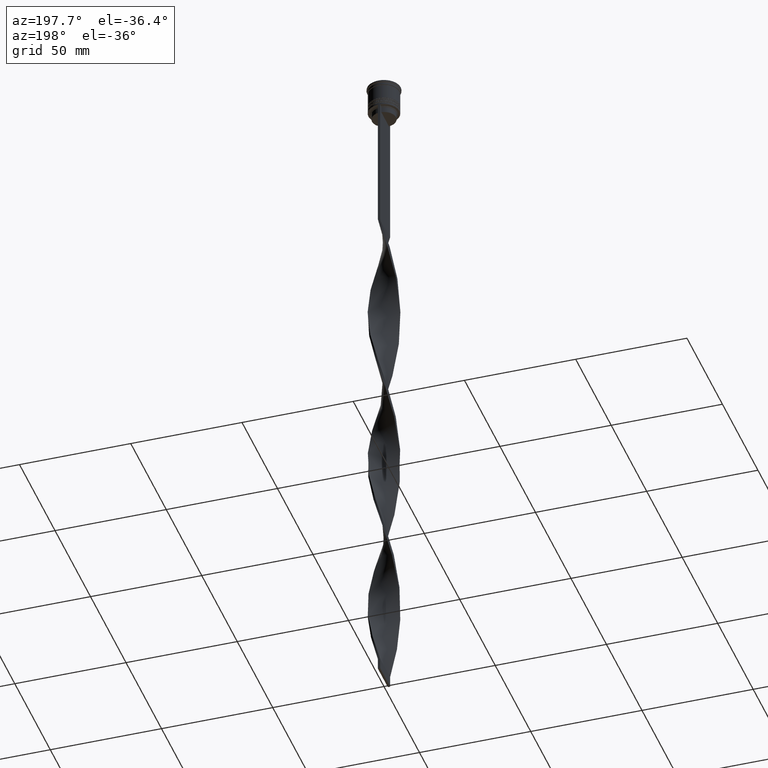
[diagram: clean part render]
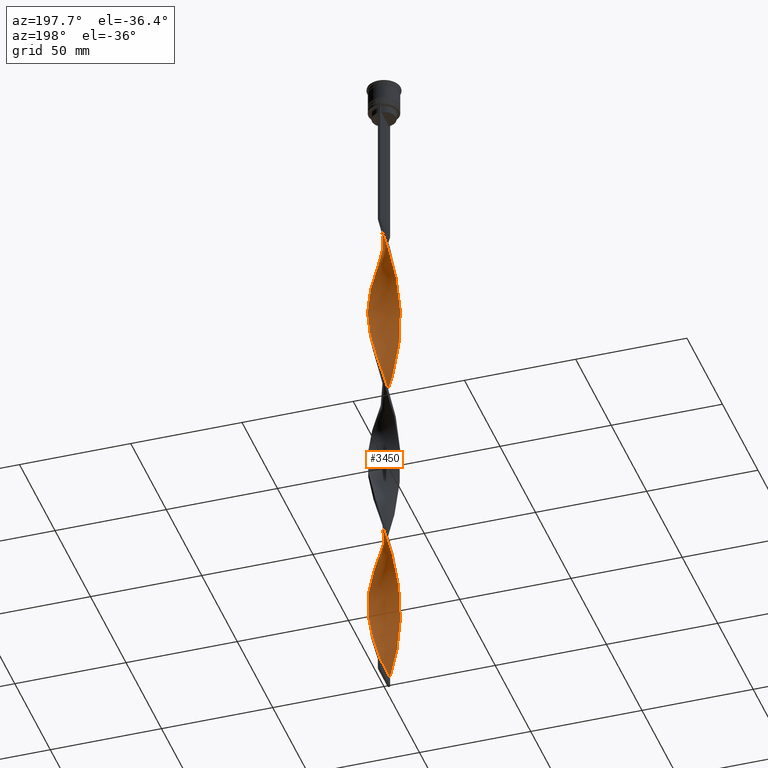
[diagram: same view with one face highlighted and labeled with its STEP entity id]
A machine part, auxiliary view. The second image highlights one B-rep face of the part: STEP entity #3450.
In plain terms, the highlighted face is a freeform B-spline surface patch.
Its self-contained STEP definition (entity closure, byte-faithful):
#6 = CARTESIAN_POINT ( 'NONE',  ( 6.248993995829454029, 3.241161289406940593, -204.1500000000000341 ) ) ;
#10 = CARTESIAN_POINT ( 'NONE',  ( -0.5000000000000008882, -7.000000000000002665, -307.5000000000000000 ) ) ;
#16 = CARTESIAN_POINT ( 'NONE',  ( -6.010050419448804249, 3.623436760271012691, -256.8000000000000114 ) ) ;
#23 = CARTESIAN_POINT ( 'NONE',  ( -0.4999999999999991673, 6.999999999999997335, -307.5000000000000000 ) ) ;
#24 = CARTESIAN_POINT ( 'NONE',  ( -3.709988268859839788, 5.957011586770871503, -89.10000000000000853 ) ) ;
#25 = CARTESIAN_POINT ( 'NONE',  ( -4.096437986383648422, -5.724879761844409387, -293.8500000000000227 ) ) ;
#36 = CARTESIAN_POINT ( 'NONE',  ( -2.638647218772210312, -6.502887116878603990, -299.6999999999999886 ) ) ;
#49 = CARTESIAN_POINT ( 'NONE',  ( 4.596194077712557835, 5.303300858899104853, -288.0000000000000568 ) ) ;
#60 = CARTESIAN_POINT ( 'NONE',  ( 1.588885425579184663, -6.835601151645846585, -77.40000000000000568 ) ) ;
#71 = CARTESIAN_POINT ( 'NONE',  ( -6.464040919188350998, -2.732430236082644459, -280.1999999999999886 ) ) ;
#79 = CARTESIAN_POINT ( 'NONE',  ( -6.710553156704007094, -2.126858903386035671, -196.3500000000000227 ) ) ;
#80 = CARTESIAN_POINT ( 'NONE',  ( -4.178815248312737651, -5.665029177712284536, -211.9499999999999886 ) ) ;
#85 = ORIENTED_EDGE ( 'NONE', *, *, #2129, .T. ) ;
#87 = CARTESIAN_POINT ( 'NONE',  ( -6.710553156704009758, 2.126858903386041888, -262.6499999999999773 ) ) ;
#101 = CARTESIAN_POINT ( 'NONE',  ( 2.223699182758344772, 6.679087842547246190, -141.7499999999999716 ) ) ;
#110 = CARTESIAN_POINT ( 'NONE',  ( -3.623436760271013135, -6.010050419448804249, -295.8000000000000114 ) ) ;
#114 = EDGE_CURVE ( 'NONE', #1023, #331, #3911, .T. ) ;
#123 = CARTESIAN_POINT ( 'NONE',  ( -1.687590702477056226, -6.811904111253546112, -221.7000000000000171 ) ) ;
#135 = CARTESIAN_POINT ( 'NONE',  ( -6.960649146587694069, 1.050911947772329658, -110.5500000000000114 ) ) ;
#140 = CARTESIAN_POINT ( 'NONE',  ( 0.5000000000000000000, -6.999999999999997335, -229.5000000000000000 ) ) ;
#155 = CARTESIAN_POINT ( 'NONE',  ( 3.241161289406941926, 6.248993995829446924, -137.8499999999999943 ) ) ;
#161 = CARTESIAN_POINT ( 'NONE',  ( -7.000000000000002665, 0.5000000000000004441, -112.5000000000000142 ) ) ;
#172 = CARTESIAN_POINT ( 'NONE',  ( -0.6011970849840476694, 6.992035616686082200, -77.40000000000000568 ) ) ;
#182 = CARTESIAN_POINT ( 'NONE',  ( -5.957011586770871503, -3.709988268859838900, -128.0999999999999943 ) ) ;
#200 = CARTESIAN_POINT ( 'NONE',  ( 6.811904111253552330, 1.687590702477054450, -198.3000000000000114 ) ) ;
#209 = CARTESIAN_POINT ( 'NONE',  ( -0.05091194777233376545, -7.039350853412307707, -227.5500000000000114 ) ) ;
#211 = CARTESIAN_POINT ( 'NONE',  ( -6.710553156704009758, 2.126858903386041888, -106.6500000000000199 ) ) ;
#216 = CARTESIAN_POINT ( 'NONE',  ( 6.944720379959848700, -1.151482222195765681, -262.6499999999999773 ) ) ;
#218 =( BOUNDED_SURFACE ( )  B_SPLINE_SURFACE ( 1, 2, ( 
 ( #1631, #3595, #2903, #1378, #2632, #3918, #1068, #2038, #24, #2054, #2347, #762, #471, #2021, #2856, #1724, #3289, #454, #2973, #2538, #161, #1416, #2673, #3959, #1107, #2365, #2441, #2760, #182, #1124, #1807, #1765, #1206, #3348, #1167, #2097, #2405, #220, #1475, #2693, #3712, #3010, #902, #4039, #2075, #1183, #4021, #2160, #877, #515, #3675, #3050, #1745, #2739, #2136, #3976, #3405, #1458, #3031, #575, #1831, #1437, #2382, #3073, #200, #2462, #3650, #819, #3091, #3739, #2715, #3366, #2425, #3996, #1142, #3696, #3382, #843, #533, #263, #1516, #1785, #860, #2116, #490, #550, #2778, #243, #1497, #4057, #1864, #659, #1577, #613, #16, #1228, #1912, #3131, #306, #1269, #1556, #3158, #2847, #1318, #3196, #2487, #3466, #678, #1534, #3110, #2867, #281, #2571, #4109, #3178, #2822, #36, #1931, #1294, #370, #1246 ),
 ( #2894, #1621, #60, #2549, #348, #1598, #1006, #965, #3443, #3829, #3850, #2226, #2176, #986, #2798, #3424, #2506, #2528, #2247, #593, #1849, #4084, #3515, #3778, #3761, #920, #938, #2196, #637, #1889, #328, #3805, #3493, #155, #3301, #101, #756, #427, #2288, #2667, #3258, #3574, #2913, #1336, #1972, #2322, #3590, #2628, #1392, #2014, #3894, #1679, #720, #2984, #3284, #3239, #2952, #1028, #449, #1993, #3557, #392, #409, #79, #1658, #779, #1640, #1409, #1702, #466, #1717, #2340, #2645, #3955, #2967, #2266, #123, #2929, #1047, #3222, #140, #2587, #3930, #3534, #1374, #3912, #1080, #3872, #698, #3615, #2035, #1064, #1354, #2609, #1953, #2305, #738, #216, #3068, #1103, #3646, #1137, #2756, #3318, #794, #2689, #2774, #1471, #857, #2733, #3692, #3972, #2113, #3992, #569, #4015, #1180, #1163, #3341, #1826, #2421 ) ),
 .UNSPECIFIED., .F., .F., .F. ) 
 B_SPLINE_SURFACE_WITH_KNOTS ( ( 2, 2 ),
 ( 3, 2, 2, 2, 2, 2, 2, 2, 2, 2, 2, 2, 2, 2, 2, 2, 2, 2, 2, 2, 2, 2, 2, 2, 2, 2, 2, 2, 2, 2, 2, 2, 2, 2, 2, 2, 2, 2, 2, 2, 2, 2, 2, 2, 2, 2, 2, 2, 2, 2, 2, 2, 2, 2, 2, 2, 2, 2, 2, 2, 3 ),
 ( 0.000000000000000000, 1.000000000000000000 ),
 ( 0.000000000000000000, 0.01250000000000000069, 0.02500000000000000139, 0.03749999999999999861, 0.05000000000000000278, 0.06250000000000000000, 0.07499999999999999722, 0.08749999999999999445, 0.1000000000000000056, 0.1125000000000000028, 0.1250000000000000000, 0.1375000000000000111, 0.1499999999999999944, 0.1625000000000000056, 0.1749999999999999889, 0.1875000000000000000, 0.2000000000000000111, 0.2124999999999999944, 0.2250000000000000056, 0.2374999999999999889, 0.2500000000000000000, 0.2625000000000000111, 0.2750000000000000222, 0.2874999999999999778, 0.2999999999999999889, 0.3125000000000000000, 0.3250000000000000111, 0.3375000000000000222, 0.3499999999999999778, 0.3624999999999999889, 0.3750000000000000000, 0.3875000000000000111, 0.4000000000000000222, 0.4124999999999999778, 0.4249999999999999889, 0.4375000000000000000, 0.4500000000000000111, 0.4625000000000000222, 0.4749999999999999778, 0.4874999999999999889, 0.5000000000000000000, 0.5124999999999999556, 0.5250000000000000222, 0.5374999999999999778, 0.5500000000000000444, 0.5625000000000000000, 0.5749999999999999556, 0.5875000000000000222, 0.5999999999999999778, 0.6125000000000000444, 0.6250000000000000000, 0.6374999999999999556, 0.6500000000000000222, 0.6624999999999999778, 0.6750000000000000444, 0.6875000000000000000, 0.6999999999999999556, 0.7125000000000000222, 0.7249999999999999778, 0.7375000000000000444, 0.7500000000000000000 ),
 .UNSPECIFIED. ) 
 GEOMETRIC_REPRESENTATION_ITEM ( )  RATIONAL_B_SPLINE_SURFACE ( (
 ( 1.000000000000000000, 0.9969173337331279638, 1.000000000000000000, 0.9969173337331279638, 1.000000000000000000, 0.9969173337331279638, 1.000000000000000000, 0.9969173337331279638, 1.000000000000000000, 0.9969173337331279638, 1.000000000000000000, 0.9969173337331279638, 1.000000000000000000, 0.9969173337331279638, 1.000000000000000000, 0.9969173337331279638, 1.000000000000000000, 0.9969173337331279638, 1.000000000000000000, 0.9969173337331279638, 1.000000000000000000, 0.9969173337331279638, 1.000000000000000000, 0.9969173337331279638, 1.000000000000000000, 0.9969173337331279638, 1.000000000000000000, 0.9969173337331279638, 1.000000000000000000, 0.9969173337331279638, 1.000000000000000000, 0.9969173337331279638, 1.000000000000000000, 0.9969173337331279638, 1.000000000000000000, 0.9969173337331279638, 1.000000000000000000, 0.9969173337331279638, 1.000000000000000000, 0.9969173337331279638, 1.000000000000000000, 0.9969173337331279638, 1.000000000000000000, 0.9969173337331279638, 1.000000000000000000, 0.9969173337331279638, 1.000000000000000000, 0.9969173337331279638, 1.000000000000000000, 0.9969173337331279638, 1.000000000000000000, 0.9969173337331279638, 1.000000000000000000, 0.9969173337331279638, 1.000000000000000000, 0.9969173337331279638, 1.000000000000000000, 0.9969173337331279638, 1.000000000000000000, 0.9969173337331279638, 1.000000000000000000, 0.9969173337331279638, 1.000000000000000000, 0.9969173337331279638, 1.000000000000000000, 0.9969173337331279638, 1.000000000000000000, 0.9969173337331279638, 1.000000000000000000, 0.9969173337331279638, 1.000000000000000000, 0.9969173337331279638, 1.000000000000000000, 0.9969173337331279638, 1.000000000000000000, 0.9969173337331279638, 1.000000000000000000, 0.9969173337331279638, 1.000000000000000000, 0.9969173337331279638, 1.000000000000000000, 0.9969173337331279638, 1.000000000000000000, 0.9969173337331279638, 1.000000000000000000, 0.9969173337331279638, 1.000000000000000000, 0.9969173337331279638, 1.000000000000000000, 0.9969173337331279638, 1.000000000000000000, 0.9969173337331279638, 1.000000000000000000, 0.9969173337331279638, 1.000000000000000000, 0.9969173337331279638, 1.000000000000000000, 0.9969173337331279638, 1.000000000000000000, 0.9969173337331279638, 1.000000000000000000, 0.9969173337331279638, 1.000000000000000000, 0.9969173337331279638, 1.000000000000000000, 0.9969173337331279638, 1.000000000000000000, 0.9969173337331279638, 1.000000000000000000, 0.9969173337331279638, 1.000000000000000000, 0.9969173337331279638, 1.000000000000000000, 0.9969173337331279638, 1.000000000000000000, 0.9969173337331279638, 1.000000000000000000, 0.9969173337331279638, 1.000000000000000000, 0.9969173337331279638, 1.000000000000000000),
 ( 1.000000000000000000, 0.9969173337331279638, 1.000000000000000000, 0.9969173337331279638, 1.000000000000000000, 0.9969173337331279638, 1.000000000000000000, 0.9969173337331279638, 1.000000000000000000, 0.9969173337331279638, 1.000000000000000000, 0.9969173337331279638, 1.000000000000000000, 0.9969173337331279638, 1.000000000000000000, 0.9969173337331279638, 1.000000000000000000, 0.9969173337331279638, 1.000000000000000000, 0.9969173337331279638, 1.000000000000000000, 0.9969173337331279638, 1.000000000000000000, 0.9969173337331279638, 1.000000000000000000, 0.9969173337331279638, 1.000000000000000000, 0.9969173337331279638, 1.000000000000000000, 0.9969173337331279638, 1.000000000000000000, 0.9969173337331279638, 1.000000000000000000, 0.9969173337331279638, 1.000000000000000000, 0.9969173337331279638, 1.000000000000000000, 0.9969173337331279638, 1.000000000000000000, 0.9969173337331279638, 1.000000000000000000, 0.9969173337331279638, 1.000000000000000000, 0.9969173337331279638, 1.000000000000000000, 0.9969173337331279638, 1.000000000000000000, 0.9969173337331279638, 1.000000000000000000, 0.9969173337331279638, 1.000000000000000000, 0.9969173337331279638, 1.000000000000000000, 0.9969173337331279638, 1.000000000000000000, 0.9969173337331279638, 1.000000000000000000, 0.9969173337331279638, 1.000000000000000000, 0.9969173337331279638, 1.000000000000000000, 0.9969173337331279638, 1.000000000000000000, 0.9969173337331279638, 1.000000000000000000, 0.9969173337331279638, 1.000000000000000000, 0.9969173337331279638, 1.000000000000000000, 0.9969173337331279638, 1.000000000000000000, 0.9969173337331279638, 1.000000000000000000, 0.9969173337331279638, 1.000000000000000000, 0.9969173337331279638, 1.000000000000000000, 0.9969173337331279638, 1.000000000000000000, 0.9969173337331279638, 1.000000000000000000, 0.9969173337331279638, 1.000000000000000000, 0.9969173337331279638, 1.000000000000000000, 0.9969173337331279638, 1.000000000000000000, 0.9969173337331279638, 1.000000000000000000, 0.9969173337331279638, 1.000000000000000000, 0.9969173337331279638, 1.000000000000000000, 0.9969173337331279638, 1.000000000000000000, 0.9969173337331279638, 1.000000000000000000, 0.9969173337331279638, 1.000000000000000000, 0.9969173337331279638, 1.000000000000000000, 0.9969173337331279638, 1.000000000000000000, 0.9969173337331279638, 1.000000000000000000, 0.9969173337331279638, 1.000000000000000000, 0.9969173337331279638, 1.000000000000000000, 0.9969173337331279638, 1.000000000000000000, 0.9969173337331279638, 1.000000000000000000, 0.9969173337331279638, 1.000000000000000000, 0.9969173337331279638, 1.000000000000000000, 0.9969173337331279638, 1.000000000000000000, 0.9969173337331279638, 1.000000000000000000) ) ) 
 REPRESENTATION_ITEM ( '' )  SURFACE ( )  );
#220 = CARTESIAN_POINT ( 'NONE',  ( -2.126858903386042332, -6.710553156704010647, -145.6500000000000341 ) ) ;
#231 = CARTESIAN_POINT ( 'NONE',  ( 7.000000000000002665, -0.5000000000000013323, -190.5000000000000000 ) ) ;
#243 = CARTESIAN_POINT ( 'NONE',  ( -3.241161289406943702, 6.248993995829452253, -243.1500000000000057 ) ) ;
#251 = CARTESIAN_POINT ( 'NONE',  ( 5.724879761844405834, 4.096437986383644869, -126.1500000000000057 ) ) ;
#254 = CARTESIAN_POINT ( 'NONE',  ( 4.519005263234789460, 5.369226334478396367, -213.9000000000000057 ) ) ;
#263 = CARTESIAN_POINT ( 'NONE',  ( 1.050911947772333876, 6.960649146587694958, -227.5499999999999829 ) ) ;
#273 = CARTESIAN_POINT ( 'NONE',  ( 5.369226334478396367, -4.519005263234788572, -174.9000000000000057 ) ) ;
#281 = CARTESIAN_POINT ( 'NONE',  ( -4.941572540085928722, -5.013572907112387789, -289.9500000000001023 ) ) ;
#284 = CARTESIAN_POINT ( 'NONE',  ( -6.960649146587689629, -1.050911947772330990, -192.4500000000000455 ) ) ;
#294 = CARTESIAN_POINT ( 'NONE',  ( -3.623436760271013135, -6.010050419448804249, -139.8000000000000114 ) ) ;
#296 = CARTESIAN_POINT ( 'NONE',  ( 5.957011586770867062, -3.709988268859836236, -96.90000000000001990 ) ) ;
#306 = CARTESIAN_POINT ( 'NONE',  ( -6.835601151645851026, 1.588885425579185995, -264.6000000000000227 ) ) ;
#319 = CARTESIAN_POINT ( 'NONE',  ( 1.151482222195765237, -6.944720379959854029, -157.3499999999999943 ) ) ;
#328 = CARTESIAN_POINT ( 'NONE',  ( 4.596194077712557835, 5.303300858899104853, -132.0000000000000000 ) ) ;
#331 = VERTEX_POINT ( 'NONE', #1075 ) ;
#338 = CARTESIAN_POINT ( 'NONE',  ( -5.369226334478397256, 4.519005263234787684, -252.9000000000000057 ) ) ;
#348 = CARTESIAN_POINT ( 'NONE',  ( 2.638647218772207648, -6.502887116878598661, -81.30000000000001137 ) ) ;
#356 = CARTESIAN_POINT ( 'NONE',  ( 6.010050419448799808, 3.623436760271010026, -280.1999999999999886 ) ) ;
#357 = CARTESIAN_POINT ( 'NONE',  ( 5.724879761844405834, 4.096437986383644869, -282.1500000000000909 ) ) ;
#359 = CARTESIAN_POINT ( 'NONE',  ( -6.992035616686082200, -0.6011970849840472253, -272.3999999999999773 ) ) ;
#370 = CARTESIAN_POINT ( 'NONE',  ( -1.050911947772330324, -6.960649146587694958, -305.5500000000000114 ) ) ;
#383 = CARTESIAN_POINT ( 'NONE',  ( -3.241161289406943702, 6.248993995829452253, -243.1500000000000057 ) ) ;
#392 = CARTESIAN_POINT ( 'NONE',  ( -6.960649146587689629, -1.050911947772330990, -192.4500000000000171 ) ) ;
#396 = EDGE_CURVE ( 'NONE', #331, #1277, #2773, .T. ) ;
#402 = CARTESIAN_POINT ( 'NONE',  ( -7.039350853412313036, -0.05091194777232888741, -270.4500000000000455 ) ) ;
#409 = CARTESIAN_POINT ( 'NONE',  ( -6.835601151645846585, -1.588885425579183330, -194.4000000000000057 ) ) ;
#417 = CARTESIAN_POINT ( 'NONE',  ( -2.638647218772210312, -6.502887116878603990, -299.6999999999999886 ) ) ;
#427 = CARTESIAN_POINT ( 'NONE',  ( 1.151482222195765681, 6.944720379959848700, -145.6500000000000341 ) ) ;
#449 = CARTESIAN_POINT ( 'NONE',  ( -6.992035616686076871, 0.6011970849840481135, -186.5999999999999943 ) ) ;
#454 = CARTESIAN_POINT ( 'NONE',  ( -6.710553156704010647, 2.126858903386041888, -106.6500000000000199 ) ) ;
#466 = CARTESIAN_POINT ( 'NONE',  ( -5.013572907112382460, -4.941572540085926057, -208.0500000000000398 ) ) ;
#471 = CARTESIAN_POINT ( 'NONE',  ( -5.369226334478397256, 4.519005263234787684, -96.90000000000001990 ) ) ;
#490 = CARTESIAN_POINT ( 'NONE',  ( -1.687590702477055782, 6.811904111253551442, -237.3000000000000114 ) ) ;
#515 = CARTESIAN_POINT ( 'NONE',  ( 4.178815248312736763, -5.665029177712291641, -169.0499999999999829 ) ) ;
#526 = CARTESIAN_POINT ( 'NONE',  ( -6.010050419448804249, 3.623436760271012691, -100.7999999999999972 ) ) ;
#533 = CARTESIAN_POINT ( 'NONE',  ( 1.588885425579186883, 6.835601151645850138, -225.5999999999999943 ) ) ;
#543 = CARTESIAN_POINT ( 'NONE',  ( 2.732430236082644015, -6.464040919188350998, -163.2000000000000171 ) ) ;
#550 = CARTESIAN_POINT ( 'NONE',  ( -2.223699182758346105, 6.679087842547251519, -239.2500000000000000 ) ) ;
#561 = CARTESIAN_POINT ( 'NONE',  ( 4.178815248312734987, 5.665029177712287201, -133.9500000000000455 ) ) ;
#563 = CARTESIAN_POINT ( 'NONE',  ( -2.638647218772210312, -6.502887116878603990, -143.6999999999999886 ) ) ;
#569 = CARTESIAN_POINT ( 'NONE',  ( 2.732430236082643127, 6.464040919188344780, -295.8000000000000114 ) ) ;
#575 = CARTESIAN_POINT ( 'NONE',  ( 6.960649146587694958, -1.050911947772333654, -188.5500000000000398 ) ) ;
#583 = CARTESIAN_POINT ( 'NONE',  ( 1.588885425579186883, 6.835601151645850138, -225.5999999999999943 ) ) ;
#586 = CARTESIAN_POINT ( 'NONE',  ( 6.502887116878599549, 2.638647218772207204, -276.3000000000000114 ) ) ;
#589 = VERTEX_POINT ( 'NONE', #2637 ) ;
#593 = CARTESIAN_POINT ( 'NONE',  ( 7.039350853412307707, -0.05091194777232931762, -110.5500000000000114 ) ) ;
#603 = CARTESIAN_POINT ( 'NONE',  ( 6.679087842547249743, 2.223699182758347881, -200.2500000000000000 ) ) ;
#605 = CARTESIAN_POINT ( 'NONE',  ( 6.679087842547245302, -2.223699182758344772, -102.7500000000000284 ) ) ;
#613 = CARTESIAN_POINT ( 'NONE',  ( -5.724879761844408499, 4.096437986383648422, -254.8500000000000227 ) ) ;
#625 = CARTESIAN_POINT ( 'NONE',  ( 5.957011586770871503, 3.709988268859838012, -206.0999999999999943 ) ) ;
#627 = CARTESIAN_POINT ( 'NONE',  ( 4.519005263234784131, -5.369226334478393703, -89.10000000000000853 ) ) ;
#637 = CARTESIAN_POINT ( 'NONE',  ( 5.369226334478393703, 4.519005263234783243, -128.0999999999999943 ) ) ;
#659 = CARTESIAN_POINT ( 'NONE',  ( -5.013572907112387789, 4.941572540085928722, -250.9499999999999602 ) ) ;
#666 = CARTESIAN_POINT ( 'NONE',  ( 5.369226334478393703, 4.519005263234783243, -284.1000000000000227 ) ) ;
#668 = CARTESIAN_POINT ( 'NONE',  ( -6.248993995829452253, -3.241161289406943702, -282.1500000000000909 ) ) ;
#671 = CARTESIAN_POINT ( 'NONE',  ( 3.623436760271010026, -6.010050419448799808, -85.20000000000001705 ) ) ;
#678 = CARTESIAN_POINT ( 'NONE',  ( -6.248993995829452253, -3.241161289406943702, -282.1500000000000909 ) ) ;
#698 = CARTESIAN_POINT ( 'NONE',  ( 4.519005263234784131, -5.369226334478393703, -245.1000000000000227 ) ) ;
#720 = CARTESIAN_POINT ( 'NONE',  ( -5.957011586770866174, 3.709988268859837568, -174.9000000000000057 ) ) ;
#738 = CARTESIAN_POINT ( 'NONE',  ( 6.811904111253546112, -1.687590702477054450, -260.6999999999999886 ) ) ;
#755 = DIRECTION ( 'NONE',  ( 0.000000000000000000, 1.000000000000000000, 0.000000000000000000 ) ) ;
#756 = CARTESIAN_POINT ( 'NONE',  ( 1.687590702477054894, 6.811904111253546112, -143.6999999999999886 ) ) ;
#762 = CARTESIAN_POINT ( 'NONE',  ( -5.013572907112387789, 4.941572540085928722, -94.95000000000001705 ) ) ;
#770 = CARTESIAN_POINT ( 'NONE',  ( 6.944720379959847811, -1.151482222195765681, -106.6500000000000199 ) ) ;
#779 = CARTESIAN_POINT ( 'NONE',  ( -6.295221077053191117, -3.150435534158376960, -200.2500000000000000 ) ) ;
#794 = CARTESIAN_POINT ( 'NONE',  ( 6.502887116878599549, 2.638647218772207204, -276.3000000000000114 ) ) ;
#795 = CARTESIAN_POINT ( 'NONE',  ( 5.665029177712287201, -4.178815248312734987, -250.9500000000000171 ) ) ;
#807 = CARTESIAN_POINT ( 'NONE',  ( -1.151482222195766125, 6.944720379959853140, -79.35000000000002274 ) ) ;
#812 = VECTOR ( 'NONE', #755, 1000.000000000000000 ) ;
#819 = CARTESIAN_POINT ( 'NONE',  ( 6.248993995829454029, 3.241161289406941037, -204.1500000000000341 ) ) ;
#832 = CARTESIAN_POINT ( 'NONE',  ( -5.013572907112386901, 4.941572540085927834, -94.95000000000001705 ) ) ;
#843 = CARTESIAN_POINT ( 'NONE',  ( 2.126858903386039668, 6.710553156704011535, -223.6500000000000341 ) ) ;
#857 = CARTESIAN_POINT ( 'NONE',  ( 5.369226334478393703, 4.519005263234783243, -284.1000000000000227 ) ) ;
#860 = CARTESIAN_POINT ( 'NONE',  ( -0.6011970849840476694, 6.992035616686082200, -233.4000000000000057 ) ) ;
#868 = CARTESIAN_POINT ( 'NONE',  ( 2.732430236082643127, 6.464040919188344780, -139.8000000000000114 ) ) ;
#870 = CARTESIAN_POINT ( 'NONE',  ( 5.303300858899109294, 4.596194077712558723, -210.0000000000000000 ) ) ;
#877 = CARTESIAN_POINT ( 'NONE',  ( 3.709988268859838900, -5.957011586770871503, -167.0999999999999943 ) ) ;
#887 = CARTESIAN_POINT ( 'NONE',  ( -6.811904111253552330, -1.687590702477055338, -120.2999999999999972 ) ) ;
#902 = CARTESIAN_POINT ( 'NONE',  ( 0.6011970849840465592, -6.992035616686082200, -155.4000000000000057 ) ) ;
#910 = CARTESIAN_POINT ( 'NONE',  ( -0.05091194777232942864, 7.039350853412313036, -231.4500000000000171 ) ) ;
#920 = CARTESIAN_POINT ( 'NONE',  ( 6.295221077053192005, 3.150435534158375184, -122.2500000000000142 ) ) ;
#923 = CARTESIAN_POINT ( 'NONE',  ( 6.944720379959847811, -1.151482222195765681, -262.6499999999999773 ) ) ;
#929 = CARTESIAN_POINT ( 'NONE',  ( -6.248993995829452253, -3.241161289406943702, -126.1500000000000057 ) ) ;
#938 = CARTESIAN_POINT ( 'NONE',  ( 6.010050419448799808, 3.623436760271010026, -124.2000000000000028 ) ) ;
#951 = CARTESIAN_POINT ( 'NONE',  ( -5.303300858899108405, -4.596194077712559611, -132.0000000000000000 ) ) ;
#965 = CARTESIAN_POINT ( 'NONE',  ( 4.096437986383643981, -5.724879761844404946, -87.15000000000001990 ) ) ;
#986 = CARTESIAN_POINT ( 'NONE',  ( 6.248993995829446924, -3.241161289406941926, -98.85000000000002274 ) ) ;
#1006 = CARTESIAN_POINT ( 'NONE',  ( 3.623436760271010026, -6.010050419448799808, -85.20000000000001705 ) ) ;
#1014 = CARTESIAN_POINT ( 'NONE',  ( 2.732430236082643127, 6.464040919188344780, -295.8000000000000114 ) ) ;
#1016 = CARTESIAN_POINT ( 'NONE',  ( -4.596194077712561388, 5.303300858899108405, -249.0000000000000000 ) ) ;
#1023 = VERTEX_POINT ( 'NONE', #2669 ) ;
#1028 = CARTESIAN_POINT ( 'NONE',  ( -6.944720379959849588, 1.151482222195763239, -184.6500000000000057 ) ) ;
#1047 = CARTESIAN_POINT ( 'NONE',  ( -0.6011970849840483355, -6.992035616686076871, -225.5999999999999943 ) ) ;
#1057 = CARTESIAN_POINT ( 'NONE',  ( 6.835601151645846585, 1.588885425579184218, -116.4000000000000057 ) ) ;
#1058 = CARTESIAN_POINT ( 'NONE',  ( -6.464040919188344780, 2.732430236082643571, -178.8000000000000114 ) ) ;
#1063 = CARTESIAN_POINT ( 'NONE',  ( 0.5000000000000000000, -6.999999999999997335, -73.50000000000001421 ) ) ;
#1064 = CARTESIAN_POINT ( 'NONE',  ( 5.665029177712287201, -4.178815248312734987, -250.9499999999999602 ) ) ;
#1068 = CARTESIAN_POINT ( 'NONE',  ( -2.732430236082644459, 6.464040919188350998, -85.20000000000001705 ) ) ;
#1075 = CARTESIAN_POINT ( 'NONE',  ( 0.5000000000000000000, 7.000000000000002665, -73.50000000000001421 ) ) ;
#1080 = CARTESIAN_POINT ( 'NONE',  ( 3.623436760271010026, -6.010050419448799808, -241.1999999999999886 ) ) ;
#1086 = FACE_OUTER_BOUND ( 'NONE', #2794, .T. ) ;
#1100 = CARTESIAN_POINT ( 'NONE',  ( -0.4999999999999991673, 6.999999999999997335, -151.5000000000000284 ) ) ;
#1103 = CARTESIAN_POINT ( 'NONE',  ( 7.039350853412307707, -0.05091194777232931762, -266.5500000000000114 ) ) ;
#1107 = CARTESIAN_POINT ( 'NONE',  ( -6.811904111253552330, -1.687590702477055338, -120.2999999999999972 ) ) ;
#1121 = CARTESIAN_POINT ( 'NONE',  ( 5.957011586770867062, -3.709988268859836236, -252.9000000000000057 ) ) ;
#1124 = CARTESIAN_POINT ( 'NONE',  ( -5.665029177712290753, -4.178815248312736763, -130.0499999999999829 ) ) ;
#1137 = CARTESIAN_POINT ( 'NONE',  ( 6.960649146587689629, 1.050911947772328325, -270.4500000000000455 ) ) ;
#1142 = CARTESIAN_POINT ( 'NONE',  ( 3.623436760271014023, 6.010050419448804249, -217.7999999999999829 ) ) ;
#1153 = CARTESIAN_POINT ( 'NONE',  ( 0.5000000000000000000, -6.999999999999997335, -229.5000000000000000 ) ) ;
#1161 = CARTESIAN_POINT ( 'NONE',  ( 4.596194077712557835, 5.303300858899104853, -132.0000000000000000 ) ) ;
#1163 = CARTESIAN_POINT ( 'NONE',  ( 1.151482222195765681, 6.944720379959848700, -301.6500000000000341 ) ) ;
#1167 = CARTESIAN_POINT ( 'NONE',  ( -3.623436760271013135, -6.010050419448804249, -139.8000000000000114 ) ) ;
#1177 = CARTESIAN_POINT ( 'NONE',  ( -0.5000000000000008882, -7.000000000000002665, -151.5000000000000284 ) ) ;
#1180 = CARTESIAN_POINT ( 'NONE',  ( 1.687590702477054894, 6.811904111253546112, -299.6999999999999886 ) ) ;
#1183 = CARTESIAN_POINT ( 'NONE',  ( 2.223699182758345216, -6.679087842547252407, -161.2500000000000568 ) ) ;
#1193 = CARTESIAN_POINT ( 'NONE',  ( 0.05091194777232986579, 7.039350853412307707, -149.5500000000000398 ) ) ;
#1196 = CARTESIAN_POINT ( 'NONE',  ( 2.638647218772211200, 6.502887116878603990, -221.7000000000000171 ) ) ;
#1206 = CARTESIAN_POINT ( 'NONE',  ( -4.519005263234788572, -5.369226334478396367, -135.9000000000000341 ) ) ;
#1211 = CARTESIAN_POINT ( 'NONE',  ( -2.732430236082644015, -6.464040919188344780, -217.7999999999999829 ) ) ;
#1216 = CARTESIAN_POINT ( 'NONE',  ( 4.096437986383647534, 5.724879761844410275, -215.8500000000000512 ) ) ;
#1228 = CARTESIAN_POINT ( 'NONE',  ( -6.295221077053197334, 3.150435534158377848, -258.7500000000001137 ) ) ;
#1237 = CARTESIAN_POINT ( 'NONE',  ( 3.241161289406943258, -6.248993995829452253, -165.1500000000000341 ) ) ;
#1246 = CARTESIAN_POINT ( 'NONE',  ( -0.5000000000000008882, -7.000000000000002665, -307.5000000000000000 ) ) ;
#1250 = CARTESIAN_POINT ( 'NONE',  ( -6.502887116878599549, -2.638647218772206759, -198.3000000000000114 ) ) ;
#1255 = CARTESIAN_POINT ( 'NONE',  ( 1.687590702477054894, 6.811904111253546112, -299.6999999999999886 ) ) ;
#1258 = CARTESIAN_POINT ( 'NONE',  ( -6.679087842547250631, -2.223699182758345660, -122.2500000000000142 ) ) ;
#1264 = ORIENTED_EDGE ( 'NONE', *, *, #3648, .F. ) ;
#1266 = CARTESIAN_POINT ( 'NONE',  ( -4.519005263234783243, 5.369226334478393703, -167.0999999999999943 ) ) ;
#1269 = CARTESIAN_POINT ( 'NONE',  ( -6.960649146587694958, 1.050911947772329658, -266.5500000000000114 ) ) ;
#1277 = VERTEX_POINT ( 'NONE', #3978 ) ;
#1279 = CARTESIAN_POINT ( 'NONE',  ( 3.709988268859837568, 5.957011586770866174, -291.8999999999999773 ) ) ;
#1282 = CARTESIAN_POINT ( 'NONE',  ( -5.303300858899108405, -4.596194077712559611, -288.0000000000000568 ) ) ;
#1294 = CARTESIAN_POINT ( 'NONE',  ( -1.588885425579185995, -6.835601151645850138, -303.5999999999999659 ) ) ;
#1307 = CARTESIAN_POINT ( 'NONE',  ( 2.223699182758344772, 6.679087842547245302, -297.7499999999999432 ) ) ;
#1310 = CARTESIAN_POINT ( 'NONE',  ( -2.223699182758346105, 6.679087842547250631, -239.2500000000000284 ) ) ;
#1315 = CARTESIAN_POINT ( 'NONE',  ( -6.295221077053192005, -3.150435534158377404, -200.2500000000000000 ) ) ;
#1318 = CARTESIAN_POINT ( 'NONE',  ( -6.944720379959854917, -1.151482222195765681, -274.3499999999999659 ) ) ;
#1329 = CARTESIAN_POINT ( 'NONE',  ( 4.941572540085925169, -5.013572907112383348, -91.05000000000001137 ) ) ;
#1336 = CARTESIAN_POINT ( 'NONE',  ( -2.126858903386039223, 6.710553156704006206, -157.3499999999999659 ) ) ;
#1354 = CARTESIAN_POINT ( 'NONE',  ( 5.957011586770867062, -3.709988268859836236, -252.9000000000000057 ) ) ;
#1363 = CARTESIAN_POINT ( 'NONE',  ( -0.5000000000000008882, -7.000000000000002665, -307.5000000000000000 ) ) ;
#1366 = CARTESIAN_POINT ( 'NONE',  ( 6.999999999999997335, 0.4999999999999995559, -112.5000000000000142 ) ) ;
#1374 = CARTESIAN_POINT ( 'NONE',  ( 2.638647218772207648, -6.502887116878598661, -237.3000000000000114 ) ) ;
#1378 = CARTESIAN_POINT ( 'NONE',  ( -1.151482222195766125, 6.944720379959854029, -79.35000000000002274 ) ) ;
#1380 = CARTESIAN_POINT ( 'NONE',  ( 6.811904111253546112, -1.687590702477054450, -260.6999999999999886 ) ) ;
#1384 = CARTESIAN_POINT ( 'NONE',  ( 6.992035616686076871, -0.6011970849840472253, -264.6000000000000227 ) ) ;
#1386 = CARTESIAN_POINT ( 'NONE',  ( -7.000000000000002665, 0.5000000000000004441, -112.5000000000000142 ) ) ;
#1388 = CARTESIAN_POINT ( 'NONE',  ( -5.303300858899104853, 4.596194077712558723, -170.9999999999999716 ) ) ;
#1389 = CARTESIAN_POINT ( 'NONE',  ( 3.241161289406941926, 6.248993995829446924, -137.8499999999999943 ) ) ;
#1392 = CARTESIAN_POINT ( 'NONE',  ( -4.519005263234783243, 5.369226334478393703, -167.0999999999999943 ) ) ;
#1407 = CARTESIAN_POINT ( 'NONE',  ( -5.957011586770866174, 3.709988268859837568, -174.9000000000000057 ) ) ;
#1409 = CARTESIAN_POINT ( 'NONE',  ( -5.724879761844406723, -4.096437986383641316, -204.1500000000000341 ) ) ;
#1416 = CARTESIAN_POINT ( 'NONE',  ( -7.039350853412313036, -0.05091194777232888741, -114.4500000000000313 ) ) ;
#1428 = CARTESIAN_POINT ( 'NONE',  ( -2.223699182758346105, 6.679087842547250631, -83.25000000000000000 ) ) ;
#1437 = CARTESIAN_POINT ( 'NONE',  ( 7.039350853412313036, 0.05091194777233126745, -192.4500000000000171 ) ) ;
#1444 = CARTESIAN_POINT ( 'NONE',  ( 6.010050419448799808, 3.623436760271010026, -124.2000000000000028 ) ) ;
#1458 = CARTESIAN_POINT ( 'NONE',  ( 6.710553156704011535, -2.126858903386039668, -184.6500000000000057 ) ) ;
#1468 = CARTESIAN_POINT ( 'NONE',  ( 3.623436760271010026, -6.010050419448799808, -241.1999999999999886 ) ) ;
#1471 = CARTESIAN_POINT ( 'NONE',  ( 5.724879761844404946, 4.096437986383643981, -282.1500000000000909 ) ) ;
#1475 = CARTESIAN_POINT ( 'NONE',  ( -1.588885425579185995, -6.835601151645850138, -147.6000000000000227 ) ) ;
#1487 = CARTESIAN_POINT ( 'NONE',  ( 0.6011970849840465592, -6.992035616686082200, -155.4000000000000057 ) ) ;
#1497 = CARTESIAN_POINT ( 'NONE',  ( -3.709988268859839788, 5.957011586770871503, -245.1000000000000227 ) ) ;
#1506 = CARTESIAN_POINT ( 'NONE',  ( 6.502887116878603990, -2.638647218772210756, -182.6999999999999886 ) ) ;
#1516 = CARTESIAN_POINT ( 'NONE',  ( 0.5000000000000000000, 7.000000000000002665, -229.5000000000000000 ) ) ;
#1518 = CARTESIAN_POINT ( 'NONE',  ( -6.944720379959848700, 1.151482222195763017, -184.6500000000000057 ) ) ;
#1525 = CARTESIAN_POINT ( 'NONE',  ( -1.588885425579185995, -6.835601151645850138, -147.6000000000000227 ) ) ;
#1534 = CARTESIAN_POINT ( 'NONE',  ( -5.957011586770871503, -3.709988268859838900, -284.1000000000000227 ) ) ;
#1546 = CARTESIAN_POINT ( 'NONE',  ( 0.05091194777232855434, -7.039350853412313036, -153.4500000000000171 ) ) ;
#1549 = CARTESIAN_POINT ( 'NONE',  ( 1.050911947772328991, -6.960649146587689629, -75.45000000000000284 ) ) ;
#1556 = CARTESIAN_POINT ( 'NONE',  ( -7.000000000000002665, 0.5000000000000004441, -268.4999999999999432 ) ) ;
#1566 = CARTESIAN_POINT ( 'NONE',  ( -4.941572540085927834, -5.013572907112386901, -133.9500000000000455 ) ) ;
#1577 = CARTESIAN_POINT ( 'NONE',  ( -5.369226334478397256, 4.519005263234787684, -252.9000000000000057 ) ) ;
#1588 = CARTESIAN_POINT ( 'NONE',  ( -3.709988268859839788, 5.957011586770871503, -245.1000000000000227 ) ) ;
#1598 = CARTESIAN_POINT ( 'NONE',  ( 3.150435534158375628, -6.295221077053192005, -83.25000000000000000 ) ) ;
#1610 = CARTESIAN_POINT ( 'NONE',  ( -4.941572540085927834, -5.013572907112386901, -289.9500000000001023 ) ) ;
#1621 = CARTESIAN_POINT ( 'NONE',  ( 1.050911947772328991, -6.960649146587689629, -75.45000000000000284 ) ) ;
#1631 = CARTESIAN_POINT ( 'NONE',  ( 0.5000000000000000000, 7.000000000000002665, -73.50000000000001421 ) ) ;
#1632 = CARTESIAN_POINT ( 'NONE',  ( -6.944720379959854029, -1.151482222195765681, -274.3499999999999659 ) ) ;
#1634 = CARTESIAN_POINT ( 'NONE',  ( 0.5000000000000000000, -6.999999999999997335, -73.50000000000001421 ) ) ;
#1640 = CARTESIAN_POINT ( 'NONE',  ( -6.010050419448800696, -3.623436760271009138, -202.1999999999999886 ) ) ;
#1658 = CARTESIAN_POINT ( 'NONE',  ( -6.502887116878599549, -2.638647218772206759, -198.3000000000000114 ) ) ;
#1667 = CARTESIAN_POINT ( 'NONE',  ( -2.126858903386042332, -6.710553156704009758, -301.6500000000000341 ) ) ;
#1679 = CARTESIAN_POINT ( 'NONE',  ( -5.665029177712285424, 4.178815248312737651, -172.9499999999999886 ) ) ;
#1684 = CARTESIAN_POINT ( 'NONE',  ( 6.999999999999997335, 0.4999999999999995559, -268.4999999999999432 ) ) ;
#1696 = CARTESIAN_POINT ( 'NONE',  ( 0.5000000000000000000, 7.000000000000002665, -73.50000000000001421 ) ) ;
#1702 = CARTESIAN_POINT ( 'NONE',  ( -5.369226334478394591, -4.519005263234783243, -206.0999999999999943 ) ) ;
#1715 = CARTESIAN_POINT ( 'NONE',  ( 2.223699182758344772, 6.679087842547245302, -141.7500000000000000 ) ) ;
#1717 = CARTESIAN_POINT ( 'NONE',  ( -4.596194077712558723, -5.303300858899103964, -210.0000000000000000 ) ) ;
#1719 = CARTESIAN_POINT ( 'NONE',  ( 5.303300858899104853, -4.596194077712557835, -249.0000000000000000 ) ) ;
#1724 = CARTESIAN_POINT ( 'NONE',  ( -6.295221077053197334, 3.150435534158377848, -102.7500000000000284 ) ) ;
#1745 = CARTESIAN_POINT ( 'NONE',  ( 5.369226334478396367, -4.519005263234788572, -174.9000000000000057 ) ) ;
#1765 = CARTESIAN_POINT ( 'NONE',  ( -4.941572540085928722, -5.013572907112387789, -133.9500000000000455 ) ) ;
#1774 = CARTESIAN_POINT ( 'NONE',  ( -0.6011970849840483355, -6.992035616686076871, -225.5999999999999943 ) ) ;
#1778 = CARTESIAN_POINT ( 'NONE',  ( -6.295221077053198222, 3.150435534158378292, -102.7500000000000284 ) ) ;
#1780 = CARTESIAN_POINT ( 'NONE',  ( 4.096437986383644869, -5.724879761844405834, -243.1500000000000057 ) ) ;
#1785 = CARTESIAN_POINT ( 'NONE',  ( -0.05091194777232943558, 7.039350853412313036, -231.4500000000000455 ) ) ;
#1795 = CARTESIAN_POINT ( 'NONE',  ( -6.992035616686082200, -0.6011970849840472253, -116.4000000000000057 ) ) ;
#1807 = CARTESIAN_POINT ( 'NONE',  ( -5.303300858899108405, -4.596194077712559611, -132.0000000000000000 ) ) ;
#1814 = CARTESIAN_POINT ( 'NONE',  ( 6.295221077053192893, 3.150435534158375628, -122.2500000000000142 ) ) ;
#1819 = CARTESIAN_POINT ( 'NONE',  ( -6.944720379959854029, -1.151482222195765681, -118.3500000000000085 ) ) ;
#1826 = CARTESIAN_POINT ( 'NONE',  ( 0.05091194777232986579, 7.039350853412307707, -305.5500000000000114 ) ) ;
#1831 = CARTESIAN_POINT ( 'NONE',  ( 7.000000000000002665, -0.5000000000000013323, -190.5000000000000000 ) ) ;
#1839 = CARTESIAN_POINT ( 'NONE',  ( 1.687590702477054894, 6.811904111253546112, -143.6999999999999886 ) ) ;
#1842 = CARTESIAN_POINT ( 'NONE',  ( -1.050911947772330324, -6.960649146587694069, -149.5500000000000398 ) ) ;
#1849 = CARTESIAN_POINT ( 'NONE',  ( 6.999999999999997335, 0.4999999999999995559, -112.5000000000000142 ) ) ;
#1857 = CARTESIAN_POINT ( 'NONE',  ( -1.687590702477055782, 6.811904111253551442, -237.3000000000000114 ) ) ;
#1864 = CARTESIAN_POINT ( 'NONE',  ( -4.596194077712561388, 5.303300858899108405, -249.0000000000000000 ) ) ;
#1877 = CARTESIAN_POINT ( 'NONE',  ( -7.039350853412313036, -0.05091194777232888741, -114.4500000000000171 ) ) ;
#1880 = CARTESIAN_POINT ( 'NONE',  ( 6.464040919188344780, -2.732430236082642683, -100.7999999999999972 ) ) ;
#1889 = CARTESIAN_POINT ( 'NONE',  ( 5.013572907112384236, 4.941572540085925169, -130.0499999999999829 ) ) ;
#1898 = CARTESIAN_POINT ( 'NONE',  ( 4.178815248312734987, 5.665029177712287201, -289.9500000000001023 ) ) ;
#1912 = CARTESIAN_POINT ( 'NONE',  ( -6.502887116878603990, 2.638647218772209868, -260.6999999999999886 ) ) ;
#1923 = CARTESIAN_POINT ( 'NONE',  ( 5.303300858899104853, -4.596194077712557835, -93.00000000000001421 ) ) ;
#1931 = CARTESIAN_POINT ( 'NONE',  ( -2.126858903386042332, -6.710553156704010647, -301.6500000000000341 ) ) ;
#1940 = CARTESIAN_POINT ( 'NONE',  ( -7.000000000000002665, 0.5000000000000004441, -268.4999999999999432 ) ) ;
#1942 = CARTESIAN_POINT ( 'NONE',  ( 2.126858903386040112, -6.710553156704005318, -79.35000000000002274 ) ) ;
#1953 = CARTESIAN_POINT ( 'NONE',  ( 6.464040919188344780, -2.732430236082642683, -256.8000000000000114 ) ) ;
#1956 = CARTESIAN_POINT ( 'NONE',  ( -5.013572907112381571, -4.941572540085925169, -208.0500000000000398 ) ) ;
#1965 = CARTESIAN_POINT ( 'NONE',  ( -6.679087842547250631, -2.223699182758345660, -278.2500000000000000 ) ) ;
#1972 = CARTESIAN_POINT ( 'NONE',  ( -2.638647218772207204, 6.502887116878599549, -159.3000000000000114 ) ) ;
#1985 = CARTESIAN_POINT ( 'NONE',  ( -4.519005263234788572, -5.369226334478396367, -291.8999999999999773 ) ) ;
#1993 = CARTESIAN_POINT ( 'NONE',  ( -7.039350853412307707, 0.05091194777233332830, -188.5500000000000398 ) ) ;
#2010 = CARTESIAN_POINT ( 'NONE',  ( -6.010050419448800696, -3.623436760271009138, -202.1999999999999886 ) ) ;
#2014 = CARTESIAN_POINT ( 'NONE',  ( -4.941572540085925169, 5.013572907112385124, -169.0499999999999829 ) ) ;
#2018 = CARTESIAN_POINT ( 'NONE',  ( 6.295221077053192893, 3.150435534158375628, -278.2500000000000000 ) ) ;
#2021 = CARTESIAN_POINT ( 'NONE',  ( -5.724879761844408499, 4.096437986383648422, -98.85000000000002274 ) ) ;
#2035 = CARTESIAN_POINT ( 'NONE',  ( 5.303300858899104853, -4.596194077712557835, -249.0000000000000000 ) ) ;
#2038 = CARTESIAN_POINT ( 'NONE',  ( -3.241161289406943702, 6.248993995829452253, -87.15000000000001990 ) ) ;
#2054 = CARTESIAN_POINT ( 'NONE',  ( -4.178815248312736763, 5.665029177712290753, -91.05000000000001137 ) ) ;
#2075 = CARTESIAN_POINT ( 'NONE',  ( 1.687590702477054894, -6.811904111253552330, -159.3000000000000114 ) ) ;
#2097 = CARTESIAN_POINT ( 'NONE',  ( -3.150435534158378292, -6.295221077053197334, -141.7499999999999716 ) ) ;
#2107 = CARTESIAN_POINT ( 'NONE',  ( -3.709988268859839788, 5.957011586770871503, -89.10000000000000853 ) ) ;
#2109 = CARTESIAN_POINT ( 'NONE',  ( 4.519005263234784131, -5.369226334478393703, -245.1000000000000227 ) ) ;
#2113 = CARTESIAN_POINT ( 'NONE',  ( 3.709988268859837568, 5.957011586770866174, -291.8999999999999773 ) ) ;
#2116 = CARTESIAN_POINT ( 'NONE',  ( -1.151482222195766125, 6.944720379959854029, -235.3500000000000227 ) ) ;
#2124 = CARTESIAN_POINT ( 'NONE',  ( -1.588885425579183774, 6.835601151645846585, -155.4000000000000057 ) ) ;
#2127 = CARTESIAN_POINT ( 'NONE',  ( 6.710553156704010647, -2.126858903386039668, -184.6500000000000057 ) ) ;
#2129 = EDGE_CURVE ( 'NONE', #1023, #589, #3470, .T. ) ;
#2136 = CARTESIAN_POINT ( 'NONE',  ( 6.010050419448804249, -3.623436760271013579, -178.8000000000000114 ) ) ;
#2147 = CARTESIAN_POINT ( 'NONE',  ( -2.126858903386039223, 6.710553156704006206, -157.3499999999999943 ) ) ;
#2150 = CARTESIAN_POINT ( 'NONE',  ( 3.150435534158381845, 6.295221077053196446, -219.7500000000000284 ) ) ;
#2156 = CARTESIAN_POINT ( 'NONE',  ( -0.4999999999999996669, 2.333333333333331261, -307.5000000000000000 ) ) ;
#2160 = CARTESIAN_POINT ( 'NONE',  ( 3.241161289406943258, -6.248993995829452253, -165.1500000000000341 ) ) ;
#2167 = CARTESIAN_POINT ( 'NONE',  ( -0.6011970849840476694, 6.992035616686082200, -233.4000000000000057 ) ) ;
#2173 = CARTESIAN_POINT ( 'NONE',  ( -3.150435534158375184, 6.295221077053193781, -161.2500000000000284 ) ) ;
#2176 = CARTESIAN_POINT ( 'NONE',  ( 5.957011586770867062, -3.709988268859836236, -96.90000000000001990 ) ) ;
#2186 = CARTESIAN_POINT ( 'NONE',  ( 6.835601151645850138, -1.588885425579186439, -186.5999999999999943 ) ) ;
#2196 = CARTESIAN_POINT ( 'NONE',  ( 5.724879761844404946, 4.096437986383643981, -126.1500000000000199 ) ) ;
#2211 = CARTESIAN_POINT ( 'NONE',  ( -2.126858903386042332, -6.710553156704009758, -145.6500000000000341 ) ) ;
#2226 = CARTESIAN_POINT ( 'NONE',  ( 5.665029177712287201, -4.178815248312734987, -94.95000000000001705 ) ) ;
#2228 = CARTESIAN_POINT ( 'NONE',  ( -6.992035616686076871, 0.6011970849840481135, -186.5999999999999943 ) ) ;
#2237 = CARTESIAN_POINT ( 'NONE',  ( -6.811904111253552330, -1.687590702477055338, -276.3000000000000114 ) ) ;
#2247 = CARTESIAN_POINT ( 'NONE',  ( 6.992035616686076871, -0.6011970849840472253, -108.6000000000000085 ) ) ;
#2266 = CARTESIAN_POINT ( 'NONE',  ( -2.223699182758348769, -6.679087842547244414, -219.7500000000000284 ) ) ;
#2283 = CARTESIAN_POINT ( 'NONE',  ( -4.096437986383643981, 5.724879761844405834, -165.1500000000000341 ) ) ;
#2288 = CARTESIAN_POINT ( 'NONE',  ( 0.6011970849840476694, 6.992035616686076871, -147.6000000000000227 ) ) ;
#2299 = CARTESIAN_POINT ( 'NONE',  ( 6.502887116878599549, 2.638647218772207204, -120.2999999999999972 ) ) ;
#2305 = CARTESIAN_POINT ( 'NONE',  ( 6.679087842547246190, -2.223699182758344772, -258.7500000000001137 ) ) ;
#2322 = CARTESIAN_POINT ( 'NONE',  ( -3.150435534158374740, 6.295221077053192893, -161.2500000000000568 ) ) ;
#2340 = CARTESIAN_POINT ( 'NONE',  ( -4.178815248312737651, -5.665029177712284536, -211.9499999999999886 ) ) ;
#2347 = CARTESIAN_POINT ( 'NONE',  ( -4.596194077712561388, 5.303300858899108405, -93.00000000000001421 ) ) ;
#2358 = CARTESIAN_POINT ( 'NONE',  ( 2.638647218772207648, -6.502887116878598661, -237.3000000000000114 ) ) ;
#2365 = CARTESIAN_POINT ( 'NONE',  ( -6.679087842547251519, -2.223699182758345660, -122.2500000000000142 ) ) ;
#2382 = CARTESIAN_POINT ( 'NONE',  ( 6.992035616686082200, 0.6011970849840463371, -194.4000000000000057 ) ) ;
#2392 = CARTESIAN_POINT ( 'NONE',  ( -4.178815248312736763, 5.665029177712290753, -91.05000000000001137 ) ) ;
#2405 = CARTESIAN_POINT ( 'NONE',  ( -2.638647218772210312, -6.502887116878603990, -143.6999999999999886 ) ) ;
#2421 = CARTESIAN_POINT ( 'NONE',  ( -0.4999999999999991673, 6.999999999999997335, -307.5000000000000000 ) ) ;
#2425 = CARTESIAN_POINT ( 'NONE',  ( 4.519005263234789460, 5.369226334478396367, -213.9000000000000057 ) ) ;
#2434 = CARTESIAN_POINT ( 'NONE',  ( -5.665029177712290753, -4.178815248312736763, -130.0500000000000114 ) ) ;
#2441 = CARTESIAN_POINT ( 'NONE',  ( -6.464040919188350998, -2.732430236082644459, -124.2000000000000028 ) ) ;
#2444 = CARTESIAN_POINT ( 'NONE',  ( 6.960649146587689629, 1.050911947772328325, -270.4500000000000455 ) ) ;
#2450 = CARTESIAN_POINT ( 'NONE',  ( -1.050911947772328103, 6.960649146587689629, -153.4500000000000171 ) ) ;
#2452 = CARTESIAN_POINT ( 'NONE',  ( -4.096437986383648422, -5.724879761844409387, -137.8499999999999943 ) ) ;
#2462 = CARTESIAN_POINT ( 'NONE',  ( 6.679087842547250631, 2.223699182758347881, -200.2500000000000000 ) ) ;
#2469 = CARTESIAN_POINT ( 'NONE',  ( -2.223699182758348769, -6.679087842547244414, -219.7500000000000284 ) ) ;
#2472 = ORIENTED_EDGE ( 'NONE', *, *, #396, .F. ) ;
#2475 = CARTESIAN_POINT ( 'NONE',  ( 1.050911947772334099, 6.960649146587694069, -227.5500000000000114 ) ) ;
#2479 = CARTESIAN_POINT ( 'NONE',  ( 6.835601151645846585, 1.588885425579184218, -272.3999999999999773 ) ) ;
#2487 = CARTESIAN_POINT ( 'NONE',  ( -6.679087842547251519, -2.223699182758345660, -278.2500000000000000 ) ) ;
#2498 = CARTESIAN_POINT ( 'NONE',  ( 5.724879761844411163, -4.096437986383645757, -176.8500000000000227 ) ) ;
#2506 = CARTESIAN_POINT ( 'NONE',  ( 6.811904111253546112, -1.687590702477054450, -104.7000000000000171 ) ) ;
#2516 = CARTESIAN_POINT ( 'NONE',  ( -6.464040919188350998, -2.732430236082644459, -124.2000000000000028 ) ) ;
#2528 = CARTESIAN_POINT ( 'NONE',  ( 6.944720379959848700, -1.151482222195765681, -106.6500000000000199 ) ) ;
#2537 = CARTESIAN_POINT ( 'NONE',  ( 1.151482222195765681, 6.944720379959847811, -301.6500000000000341 ) ) ;
#2538 = CARTESIAN_POINT ( 'NONE',  ( -6.960649146587694958, 1.050911947772329658, -110.5500000000000114 ) ) ;
#2549 = CARTESIAN_POINT ( 'NONE',  ( 2.126858903386040112, -6.710553156704005318, -79.35000000000002274 ) ) ;
#2559 = CARTESIAN_POINT ( 'NONE',  ( 6.464040919188344780, -2.732430236082642683, -256.8000000000000114 ) ) ;
#2564 = CARTESIAN_POINT ( 'NONE',  ( -6.960649146587694069, 1.050911947772329658, -266.5500000000000114 ) ) ;
#2571 = CARTESIAN_POINT ( 'NONE',  ( -4.519005263234788572, -5.369226334478396367, -291.8999999999999773 ) ) ;
#2587 = CARTESIAN_POINT ( 'NONE',  ( 1.050911947772328991, -6.960649146587689629, -231.4500000000000455 ) ) ;
#2589 = CARTESIAN_POINT ( 'NONE',  ( -3.241161289406940149, -6.248993995829447812, -215.8500000000000512 ) ) ;
#2596 = CARTESIAN_POINT ( 'NONE',  ( -4.178815248312736763, 5.665029177712290753, -247.0500000000000114 ) ) ;
#2609 = CARTESIAN_POINT ( 'NONE',  ( 6.248993995829446924, -3.241161289406941926, -254.8500000000000227 ) ) ;
#2621 = CARTESIAN_POINT ( 'NONE',  ( 6.960649146587689629, 1.050911947772328325, -114.4500000000000171 ) ) ;
#2628 = CARTESIAN_POINT ( 'NONE',  ( -4.096437986383643093, 5.724879761844404946, -165.1500000000000341 ) ) ;
#2632 = CARTESIAN_POINT ( 'NONE',  ( -1.687590702477055782, 6.811904111253551442, -81.30000000000001137 ) ) ;
#2637 = CARTESIAN_POINT ( 'NONE',  ( -0.4999999999999991673, 6.999999999999997335, -307.5000000000000000 ) ) ;
#2642 = CARTESIAN_POINT ( 'NONE',  ( 1.151482222195765681, 6.944720379959847811, -145.6500000000000341 ) ) ;
#2645 = CARTESIAN_POINT ( 'NONE',  ( -3.709988268859838456, -5.957011586770866174, -213.9000000000000057 ) ) ;
#2658 = CARTESIAN_POINT ( 'NONE',  ( 6.992035616686076871, -0.6011970849840472253, -108.6000000000000085 ) ) ;
#2667 = CARTESIAN_POINT ( 'NONE',  ( 0.05091194777232986579, 7.039350853412307707, -149.5500000000000682 ) ) ;
#2669 = CARTESIAN_POINT ( 'NONE',  ( 0.5000000000000000000, -6.999999999999997335, -73.50000000000001421 ) ) ;
#2673 = CARTESIAN_POINT ( 'NONE',  ( -6.992035616686082200, -0.6011970849840472253, -116.4000000000000057 ) ) ;
#2682 = CARTESIAN_POINT ( 'NONE',  ( 5.013572907112383348, 4.941572540085925169, -130.0500000000000114 ) ) ;
#2685 = CARTESIAN_POINT ( 'NONE',  ( -1.687590702477055782, 6.811904111253551442, -81.30000000000001137 ) ) ;
#2689 = CARTESIAN_POINT ( 'NONE',  ( 6.295221077053192005, 3.150435534158375184, -278.2500000000000000 ) ) ;
#2693 = CARTESIAN_POINT ( 'NONE',  ( -1.050911947772330324, -6.960649146587694958, -149.5500000000000682 ) ) ;
#2701 = CARTESIAN_POINT ( 'NONE',  ( -1.687590702477056226, -6.811904111253546112, -221.7000000000000171 ) ) ;
#2703 = CARTESIAN_POINT ( 'NONE',  ( -3.241161289406943702, 6.248993995829452253, -87.15000000000001990 ) ) ;
#2715 = CARTESIAN_POINT ( 'NONE',  ( 5.303300858899109294, 4.596194077712558723, -210.0000000000000000 ) ) ;
#2733 = CARTESIAN_POINT ( 'NONE',  ( 5.013572907112384236, 4.941572540085925169, -286.0500000000000114 ) ) ;
#2739 = CARTESIAN_POINT ( 'NONE',  ( 5.724879761844410275, -4.096437986383645757, -176.8500000000000512 ) ) ;
#2752 = CARTESIAN_POINT ( 'NONE',  ( 6.944720379959854917, 1.151482222195761684, -196.3500000000000227 ) ) ;
#2756 = CARTESIAN_POINT ( 'NONE',  ( 6.835601151645846585, 1.588885425579184218, -272.3999999999999773 ) ) ;
#2760 = CARTESIAN_POINT ( 'NONE',  ( -6.248993995829452253, -3.241161289406943702, -126.1500000000000199 ) ) ;
#2768 = CARTESIAN_POINT ( 'NONE',  ( 7.039350853412313036, 0.05091194777233127439, -192.4500000000000455 ) ) ;
#2773 =( BOUNDED_CURVE ( )  B_SPLINE_CURVE ( 2, ( #1696, #3000, #172, #807, #2685, #1428, #3334, #2703, #2107, #2392, #3663, #832, #3359, #3376, #526, #1778, #3042, #211, #4008, #135, #1386, #1877, #1795, #1819, #887, #1258, #2516, #929, #3791, #2434, #951, #1566, #3121, #2452, #294, #2789, #563, #2211, #1525, #1842, #1177, #1546, #1487, #319, #4098, #4071, #543, #1237, #3083, #3725, #3101, #3060, #273, #2498, #4030, #3770, #1506, #2127, #2186, #2813, #231, #2768, #3147, #2752, #3705, #603, #2834, #6, #625, #3455, #870, #3391, #254, #1216, #4049, #2150, #1196, #3415, #583, #2475, #3750, #910, #2167, #3433, #1857, #1310, #3210, #383, #1588, #2596, #1016, #3233, #338, #3251, #2921, #2904, #3904, #87, #3504, #2564, #1940, #402, #359, #1632, #2237, #1965, #71, #668, #2857, #3188, #1282, #1610, #1985, #25, #110, #3545, #417, #1667, #3565, #3883, #1363 ),
 .UNSPECIFIED., .F., .T. ) 
 B_SPLINE_CURVE_WITH_KNOTS ( ( 3, 2, 2, 2, 2, 2, 2, 2, 2, 2, 2, 2, 2, 2, 2, 2, 2, 2, 2, 2, 2, 2, 2, 2, 2, 2, 2, 2, 2, 2, 2, 2, 2, 2, 2, 2, 2, 2, 2, 2, 2, 2, 2, 2, 2, 2, 2, 2, 2, 2, 2, 2, 2, 2, 2, 2, 2, 2, 2, 2, 3 ),
 ( 0.000000000000000000, 0.01250000000000000243, 0.02500000000000000486, 0.03749999999999999861, 0.05000000000000000971, 0.06250000000000000000, 0.07499999999999999722, 0.08749999999999998057, 0.1000000000000000194, 0.1125000000000000028, 0.1250000000000000000, 0.1375000000000000111, 0.1499999999999999944, 0.1625000000000000056, 0.1749999999999999611, 0.1875000000000000000, 0.2000000000000000389, 0.2124999999999999944, 0.2250000000000000056, 0.2374999999999999611, 0.2500000000000000000, 0.2625000000000000111, 0.2750000000000000222, 0.2874999999999999778, 0.2999999999999999889, 0.3125000000000000000, 0.3250000000000000111, 0.3375000000000000777, 0.3499999999999999223, 0.3624999999999999889, 0.3750000000000000000, 0.3875000000000000111, 0.4000000000000000777, 0.4124999999999999223, 0.4249999999999999889, 0.4375000000000000000, 0.4500000000000000111, 0.4625000000000000777, 0.4749999999999999223, 0.4874999999999999889, 0.5000000000000000000, 0.5124999999999999556, 0.5250000000000000222, 0.5374999999999999778, 0.5500000000000000444, 0.5625000000000000000, 0.5749999999999999556, 0.5875000000000000222, 0.5999999999999999778, 0.6125000000000000444, 0.6250000000000000000, 0.6374999999999999556, 0.6500000000000000222, 0.6624999999999999778, 0.6750000000000001554, 0.6875000000000000000, 0.6999999999999998446, 0.7125000000000000222, 0.7249999999999999778, 0.7375000000000001554, 0.7500000000000000000 ),
 .UNSPECIFIED. ) 
 CURVE ( )  GEOMETRIC_REPRESENTATION_ITEM ( )  RATIONAL_B_SPLINE_CURVE ( ( 1.000000000000000000, 0.9969173337331279638, 1.000000000000000000, 0.9969173337331279638, 1.000000000000000000, 0.9969173337331279638, 1.000000000000000000, 0.9969173337331279638, 1.000000000000000000, 0.9969173337331279638, 1.000000000000000000, 0.9969173337331279638, 1.000000000000000000, 0.9969173337331279638, 1.000000000000000000, 0.9969173337331279638, 1.000000000000000000, 0.9969173337331279638, 1.000000000000000000, 0.9969173337331279638, 1.000000000000000000, 0.9969173337331279638, 1.000000000000000000, 0.9969173337331279638, 1.000000000000000000, 0.9969173337331279638, 1.000000000000000000, 0.9969173337331279638, 1.000000000000000000, 0.9969173337331279638, 1.000000000000000000, 0.9969173337331279638, 1.000000000000000000, 0.9969173337331279638, 1.000000000000000000, 0.9969173337331279638, 1.000000000000000000, 0.9969173337331279638, 1.000000000000000000, 0.9969173337331279638, 1.000000000000000000, 0.9969173337331279638, 1.000000000000000000, 0.9969173337331279638, 1.000000000000000000, 0.9969173337331279638, 1.000000000000000000, 0.9969173337331279638, 1.000000000000000000, 0.9969173337331279638, 1.000000000000000000, 0.9969173337331279638, 1.000000000000000000, 0.9969173337331279638, 1.000000000000000000, 0.9969173337331279638, 1.000000000000000000, 0.9969173337331279638, 1.000000000000000000, 0.9969173337331279638, 1.000000000000000000, 0.9969173337331279638, 1.000000000000000000, 0.9969173337331279638, 1.000000000000000000, 0.9969173337331279638, 1.000000000000000000, 0.9969173337331279638, 1.000000000000000000, 0.9969173337331279638, 1.000000000000000000, 0.9969173337331279638, 1.000000000000000000, 0.9969173337331279638, 1.000000000000000000, 0.9969173337331279638, 1.000000000000000000, 0.9969173337331279638, 1.000000000000000000, 0.9969173337331279638, 1.000000000000000000, 0.9969173337331279638, 1.000000000000000000, 0.9969173337331279638, 1.000000000000000000, 0.9969173337331279638, 1.000000000000000000, 0.9969173337331279638, 1.000000000000000000, 0.9969173337331279638, 1.000000000000000000, 0.9969173337331279638, 1.000000000000000000, 0.9969173337331279638, 1.000000000000000000, 0.9969173337331279638, 1.000000000000000000, 0.9969173337331279638, 1.000000000000000000, 0.9969173337331279638, 1.000000000000000000, 0.9969173337331279638, 1.000000000000000000, 0.9969173337331279638, 1.000000000000000000, 0.9969173337331279638, 1.000000000000000000, 0.9969173337331279638, 1.000000000000000000, 0.9969173337331279638, 1.000000000000000000, 0.9969173337331279638, 1.000000000000000000, 0.9969173337331279638, 1.000000000000000000, 0.9969173337331279638, 1.000000000000000000, 0.9969173337331279638, 1.000000000000000000, 0.9969173337331279638, 1.000000000000000000 ) ) 
 REPRESENTATION_ITEM ( '' )  );
#2774 = CARTESIAN_POINT ( 'NONE',  ( 6.010050419448799808, 3.623436760271010026, -280.1999999999999886 ) ) ;
#2778 = CARTESIAN_POINT ( 'NONE',  ( -2.732430236082644459, 6.464040919188350998, -241.1999999999999886 ) ) ;
#2789 = CARTESIAN_POINT ( 'NONE',  ( -3.150435534158378736, -6.295221077053198222, -141.7500000000000000 ) ) ;
#2794 = EDGE_LOOP ( 'NONE', ( #2889, #85, #1264, #2472 ) ) ;
#2798 = CARTESIAN_POINT ( 'NONE',  ( 6.464040919188344780, -2.732430236082642683, -100.7999999999999972 ) ) ;
#2808 = CARTESIAN_POINT ( 'NONE',  ( 6.710553156704006206, 2.126858903386039668, -274.3499999999999659 ) ) ;
#2813 = CARTESIAN_POINT ( 'NONE',  ( 6.960649146587694069, -1.050911947772333876, -188.5500000000000114 ) ) ;
#2822 = CARTESIAN_POINT ( 'NONE',  ( -3.150435534158378292, -6.295221077053197334, -297.7499999999999432 ) ) ;
#2831 = CARTESIAN_POINT ( 'NONE',  ( 3.241161289406941926, 6.248993995829446924, -293.8500000000000227 ) ) ;
#2834 = CARTESIAN_POINT ( 'NONE',  ( 6.464040919188351886, 2.732430236082644015, -202.1999999999999886 ) ) ;
#2837 = CARTESIAN_POINT ( 'NONE',  ( 3.150435534158376072, -6.295221077053192893, -83.25000000000000000 ) ) ;
#2847 = CARTESIAN_POINT ( 'NONE',  ( -6.992035616686082200, -0.6011970849840472253, -272.3999999999999773 ) ) ;
#2856 = CARTESIAN_POINT ( 'NONE',  ( -6.010050419448804249, 3.623436760271012691, -100.7999999999999972 ) ) ;
#2857 = CARTESIAN_POINT ( 'NONE',  ( -5.957011586770871503, -3.709988268859838900, -284.1000000000000227 ) ) ;
#2867 = CARTESIAN_POINT ( 'NONE',  ( -5.303300858899108405, -4.596194077712559611, -288.0000000000000568 ) ) ;
#2881 = CARTESIAN_POINT ( 'NONE',  ( 0.05091194777232986579, 7.039350853412307707, -305.5500000000000114 ) ) ;
#2889 = ORIENTED_EDGE ( 'NONE', *, *, #114, .F. ) ;
#2894 = CARTESIAN_POINT ( 'NONE',  ( 0.5000000000000000000, -6.999999999999997335, -73.50000000000001421 ) ) ;
#2903 = CARTESIAN_POINT ( 'NONE',  ( -0.6011970849840476694, 6.992035616686082200, -77.40000000000000568 ) ) ;
#2904 = CARTESIAN_POINT ( 'NONE',  ( -6.295221077053198222, 3.150435534158378292, -258.7500000000001137 ) ) ;
#2906 = CARTESIAN_POINT ( 'NONE',  ( 1.588885425579184663, -6.835601151645846585, -77.40000000000000568 ) ) ;
#2913 = CARTESIAN_POINT ( 'NONE',  ( -1.588885425579183774, 6.835601151645846585, -155.4000000000000057 ) ) ;
#2921 = CARTESIAN_POINT ( 'NONE',  ( -6.010050419448804249, 3.623436760271012691, -256.8000000000000114 ) ) ;
#2929 = CARTESIAN_POINT ( 'NONE',  ( -1.151482222195763683, -6.944720379959849588, -223.6500000000000341 ) ) ;
#2952 = CARTESIAN_POINT ( 'NONE',  ( -6.811904111253546112, 1.687590702477055338, -182.6999999999999886 ) ) ;
#2960 = CARTESIAN_POINT ( 'NONE',  ( 7.039350853412307707, -0.05091194777232932456, -266.5500000000000114 ) ) ;
#2967 = CARTESIAN_POINT ( 'NONE',  ( -2.732430236082644015, -6.464040919188344780, -217.7999999999999829 ) ) ;
#2973 = CARTESIAN_POINT ( 'NONE',  ( -6.835601151645851026, 1.588885425579185995, -108.6000000000000085 ) ) ;
#2981 = CARTESIAN_POINT ( 'NONE',  ( -5.665029177712285424, 4.178815248312737651, -172.9499999999999886 ) ) ;
#2982 = CARTESIAN_POINT ( 'NONE',  ( 0.6011970849840476694, 6.992035616686076871, -147.6000000000000227 ) ) ;
#2984 = CARTESIAN_POINT ( 'NONE',  ( -6.248993995829448700, 3.241161289406940149, -176.8500000000000512 ) ) ;
#3000 = CARTESIAN_POINT ( 'NONE',  ( -0.05091194777232942864, 7.039350853412313036, -75.45000000000000284 ) ) ;
#3010 = CARTESIAN_POINT ( 'NONE',  ( 0.05091194777232855434, -7.039350853412313036, -153.4499999999999886 ) ) ;
#3025 = CARTESIAN_POINT ( 'NONE',  ( 6.248993995829446924, -3.241161289406941926, -254.8500000000000227 ) ) ;
#3031 = CARTESIAN_POINT ( 'NONE',  ( 6.835601151645850138, -1.588885425579186439, -186.5999999999999943 ) ) ;
#3042 = CARTESIAN_POINT ( 'NONE',  ( -6.502887116878603990, 2.638647218772209868, -104.7000000000000171 ) ) ;
#3050 = CARTESIAN_POINT ( 'NONE',  ( 5.013572907112385124, -4.941572540085931386, -172.9499999999999886 ) ) ;
#3057 = CARTESIAN_POINT ( 'NONE',  ( -1.151482222195763461, -6.944720379959848700, -223.6500000000000341 ) ) ;
#3060 = CARTESIAN_POINT ( 'NONE',  ( 5.013572907112384236, -4.941572540085930498, -172.9499999999999886 ) ) ;
#3068 = CARTESIAN_POINT ( 'NONE',  ( 6.992035616686076871, -0.6011970849840472253, -264.6000000000000227 ) ) ;
#3073 = CARTESIAN_POINT ( 'NONE',  ( 6.944720379959855805, 1.151482222195761906, -196.3500000000000227 ) ) ;
#3083 = CARTESIAN_POINT ( 'NONE',  ( 3.709988268859838900, -5.957011586770871503, -167.0999999999999943 ) ) ;
#3091 = CARTESIAN_POINT ( 'NONE',  ( 5.957011586770871503, 3.709988268859838012, -206.0999999999999943 ) ) ;
#3101 = CARTESIAN_POINT ( 'NONE',  ( 4.596194077712559611, -5.303300858899109294, -170.9999999999999716 ) ) ;
#3110 = CARTESIAN_POINT ( 'NONE',  ( -5.665029177712290753, -4.178815248312736763, -286.0500000000000114 ) ) ;
#3113 = CARTESIAN_POINT ( 'NONE',  ( -7.039350853412307707, 0.05091194777233333524, -188.5500000000000114 ) ) ;
#3117 = CARTESIAN_POINT ( 'NONE',  ( -4.596194077712558723, -5.303300858899103964, -210.0000000000000000 ) ) ;
#3121 = CARTESIAN_POINT ( 'NONE',  ( -4.519005263234788572, -5.369226334478396367, -135.9000000000000341 ) ) ;
#3131 = CARTESIAN_POINT ( 'NONE',  ( -6.710553156704010647, 2.126858903386041888, -262.6499999999999773 ) ) ;
#3144 = CARTESIAN_POINT ( 'NONE',  ( 0.6011970849840476694, 6.992035616686076871, -303.5999999999999659 ) ) ;
#3147 = CARTESIAN_POINT ( 'NONE',  ( 6.992035616686082200, 0.6011970849840463371, -194.4000000000000057 ) ) ;
#3150 = CARTESIAN_POINT ( 'NONE',  ( 6.811904111253546112, -1.687590702477054450, -104.7000000000000171 ) ) ;
#3158 = CARTESIAN_POINT ( 'NONE',  ( -7.039350853412313036, -0.05091194777232888741, -270.4500000000000455 ) ) ;
#3178 = CARTESIAN_POINT ( 'NONE',  ( -3.623436760271013135, -6.010050419448804249, -295.8000000000000114 ) ) ;
#3188 = CARTESIAN_POINT ( 'NONE',  ( -5.665029177712290753, -4.178815248312736763, -286.0500000000000114 ) ) ;
#3191 = CARTESIAN_POINT ( 'NONE',  ( -0.5000000000000003331, -2.333333333333336590, -307.5000000000000000 ) ) ;
#3196 = CARTESIAN_POINT ( 'NONE',  ( -6.811904111253552330, -1.687590702477055338, -276.3000000000000114 ) ) ;
#3210 = CARTESIAN_POINT ( 'NONE',  ( -2.732430236082644459, 6.464040919188350998, -241.1999999999999886 ) ) ;
#3213 = CARTESIAN_POINT ( 'NONE',  ( 5.665029177712287201, -4.178815248312734987, -94.95000000000001705 ) ) ;
#3222 = CARTESIAN_POINT ( 'NONE',  ( -0.05091194777233376545, -7.039350853412307707, -227.5499999999999829 ) ) ;
#3233 = CARTESIAN_POINT ( 'NONE',  ( -5.013572907112386901, 4.941572540085927834, -250.9500000000000171 ) ) ;
#3239 = CARTESIAN_POINT ( 'NONE',  ( -6.679087842547244414, 2.223699182758348325, -180.7500000000000284 ) ) ;
#3251 = CARTESIAN_POINT ( 'NONE',  ( -5.724879761844409387, 4.096437986383648422, -254.8500000000000227 ) ) ;
#3258 = CARTESIAN_POINT ( 'NONE',  ( -0.4999999999999991673, 6.999999999999997335, -151.5000000000000284 ) ) ;
#3279 = CARTESIAN_POINT ( 'NONE',  ( 2.126858903386040112, -6.710553156704005318, -235.3500000000000227 ) ) ;
#3280 = CARTESIAN_POINT ( 'NONE',  ( 3.709988268859837568, 5.957011586770866174, -135.9000000000000341 ) ) ;
#3284 = CARTESIAN_POINT ( 'NONE',  ( -6.464040919188344780, 2.732430236082643571, -178.8000000000000114 ) ) ;
#3289 = CARTESIAN_POINT ( 'NONE',  ( -6.502887116878603990, 2.638647218772209868, -104.7000000000000171 ) ) ;
#3301 = CARTESIAN_POINT ( 'NONE',  ( 2.732430236082643127, 6.464040919188344780, -139.8000000000000114 ) ) ;
#3302 = CARTESIAN_POINT ( 'NONE',  ( 4.941572540085925169, -5.013572907112383348, -247.0500000000000114 ) ) ;
#3318 = CARTESIAN_POINT ( 'NONE',  ( 6.710553156704006206, 2.126858903386039668, -274.3499999999999659 ) ) ;
#3334 = CARTESIAN_POINT ( 'NONE',  ( -2.732430236082644459, 6.464040919188350998, -85.20000000000001705 ) ) ;
#3341 = CARTESIAN_POINT ( 'NONE',  ( 0.6011970849840476694, 6.992035616686076871, -303.5999999999999659 ) ) ;
#3348 = CARTESIAN_POINT ( 'NONE',  ( -4.096437986383648422, -5.724879761844408499, -137.8499999999999943 ) ) ;
#3359 = CARTESIAN_POINT ( 'NONE',  ( -5.369226334478397256, 4.519005263234787684, -96.90000000000001990 ) ) ;
#3366 = CARTESIAN_POINT ( 'NONE',  ( 4.941572540085931386, 5.013572907112384236, -211.9499999999999886 ) ) ;
#3374 = CARTESIAN_POINT ( 'NONE',  ( 1.050911947772328991, -6.960649146587689629, -231.4500000000000171 ) ) ;
#3376 = CARTESIAN_POINT ( 'NONE',  ( -5.724879761844409387, 4.096437986383648422, -98.85000000000002274 ) ) ;
#3382 = CARTESIAN_POINT ( 'NONE',  ( 2.638647218772211200, 6.502887116878603990, -221.7000000000000171 ) ) ;
#3391 = CARTESIAN_POINT ( 'NONE',  ( 4.941572540085930498, 5.013572907112383348, -211.9499999999999886 ) ) ;
#3405 = CARTESIAN_POINT ( 'NONE',  ( 6.502887116878603990, -2.638647218772210756, -182.6999999999999886 ) ) ;
#3412 = CARTESIAN_POINT ( 'NONE',  ( 5.369226334478393703, 4.519005263234783243, -128.0999999999999943 ) ) ;
#3415 = CARTESIAN_POINT ( 'NONE',  ( 2.126858903386039668, 6.710553156704010647, -223.6500000000000341 ) ) ;
#3424 = CARTESIAN_POINT ( 'NONE',  ( 6.679087842547246190, -2.223699182758344772, -102.7500000000000284 ) ) ;
#3433 = CARTESIAN_POINT ( 'NONE',  ( -1.151482222195766125, 6.944720379959853140, -235.3500000000000227 ) ) ;
#3443 = CARTESIAN_POINT ( 'NONE',  ( 4.519005263234784131, -5.369226334478393703, -89.10000000000000853 ) ) ;
#3450 = ADVANCED_FACE ( 'NONE', ( #1086 ), #218, .T. ) ;
#3455 = CARTESIAN_POINT ( 'NONE',  ( 5.665029177712290753, 4.178815248312739428, -208.0500000000000398 ) ) ;
#3466 = CARTESIAN_POINT ( 'NONE',  ( -6.464040919188350998, -2.732430236082644459, -280.1999999999999886 ) ) ;
#3470 =( BOUNDED_CURVE ( )  B_SPLINE_CURVE ( 2, ( #1634, #1549, #2906, #1942, #3506, #2837, #671, #3822, #627, #1329, #1923, #3213, #296, #3752, #1880, #605, #3150, #770, #2658, #3946, #1366, #2621, #1057, #3886, #2299, #1814, #1444, #251, #3412, #2682, #1161, #561, #3280, #1389, #868, #1715, #1839, #2642, #2982, #1193, #1100, #2450, #2124, #2147, #3768, #2173, #3847, #2283, #1266, #3970, #1388, #2981, #1407, #4033, #1058, #3902, #3580, #1518, #2228, #3113, #3782, #284, #4113, #4088, #1250, #1315, #2010, #3908, #4065, #1956, #3117, #80, #3874, #2589, #1211, #2469, #2701, #3057, #1774, #209, #1153, #3374, #3685, #3279, #2358, #4075, #1468, #1780, #2109, #3302, #1719, #795, #1121, #3025, #2559, #4000, #1380, #923, #1384, #2960, #1684, #2444, #2479, #2808, #586, #2018, #356, #357, #666, #3522, #49, #1898, #1279, #2831, #1014, #1307, #1255, #2537, #3144, #2881, #23 ),
 .UNSPECIFIED., .F., .T. ) 
 B_SPLINE_CURVE_WITH_KNOTS ( ( 3, 2, 2, 2, 2, 2, 2, 2, 2, 2, 2, 2, 2, 2, 2, 2, 2, 2, 2, 2, 2, 2, 2, 2, 2, 2, 2, 2, 2, 2, 2, 2, 2, 2, 2, 2, 2, 2, 2, 2, 2, 2, 2, 2, 2, 2, 2, 2, 2, 2, 2, 2, 2, 2, 2, 2, 2, 2, 2, 2, 3 ),
 ( 0.000000000000000000, 0.01250000000000000243, 0.02500000000000000486, 0.03749999999999999861, 0.05000000000000000971, 0.06250000000000000000, 0.07499999999999999722, 0.08749999999999998057, 0.1000000000000000194, 0.1125000000000000028, 0.1250000000000000000, 0.1375000000000000111, 0.1499999999999999944, 0.1625000000000000056, 0.1749999999999999611, 0.1875000000000000000, 0.2000000000000000389, 0.2124999999999999944, 0.2250000000000000056, 0.2374999999999999611, 0.2500000000000000000, 0.2625000000000000111, 0.2750000000000000222, 0.2874999999999999778, 0.2999999999999999889, 0.3125000000000000000, 0.3250000000000000111, 0.3375000000000000777, 0.3499999999999999223, 0.3624999999999999889, 0.3750000000000000000, 0.3875000000000000111, 0.4000000000000000777, 0.4124999999999999223, 0.4249999999999999889, 0.4375000000000000000, 0.4500000000000000111, 0.4625000000000000777, 0.4749999999999999223, 0.4874999999999999889, 0.5000000000000000000, 0.5124999999999999556, 0.5250000000000000222, 0.5374999999999999778, 0.5500000000000000444, 0.5625000000000000000, 0.5749999999999999556, 0.5875000000000000222, 0.5999999999999999778, 0.6125000000000000444, 0.6250000000000000000, 0.6374999999999999556, 0.6500000000000000222, 0.6624999999999999778, 0.6750000000000001554, 0.6875000000000000000, 0.6999999999999998446, 0.7125000000000000222, 0.7249999999999999778, 0.7375000000000001554, 0.7500000000000000000 ),
 .UNSPECIFIED. ) 
 CURVE ( )  GEOMETRIC_REPRESENTATION_ITEM ( )  RATIONAL_B_SPLINE_CURVE ( ( 1.000000000000000000, 0.9969173337331279638, 1.000000000000000000, 0.9969173337331279638, 1.000000000000000000, 0.9969173337331279638, 1.000000000000000000, 0.9969173337331279638, 1.000000000000000000, 0.9969173337331279638, 1.000000000000000000, 0.9969173337331279638, 1.000000000000000000, 0.9969173337331279638, 1.000000000000000000, 0.9969173337331279638, 1.000000000000000000, 0.9969173337331279638, 1.000000000000000000, 0.9969173337331279638, 1.000000000000000000, 0.9969173337331279638, 1.000000000000000000, 0.9969173337331279638, 1.000000000000000000, 0.9969173337331279638, 1.000000000000000000, 0.9969173337331279638, 1.000000000000000000, 0.9969173337331279638, 1.000000000000000000, 0.9969173337331279638, 1.000000000000000000, 0.9969173337331279638, 1.000000000000000000, 0.9969173337331279638, 1.000000000000000000, 0.9969173337331279638, 1.000000000000000000, 0.9969173337331279638, 1.000000000000000000, 0.9969173337331279638, 1.000000000000000000, 0.9969173337331279638, 1.000000000000000000, 0.9969173337331279638, 1.000000000000000000, 0.9969173337331279638, 1.000000000000000000, 0.9969173337331279638, 1.000000000000000000, 0.9969173337331279638, 1.000000000000000000, 0.9969173337331279638, 1.000000000000000000, 0.9969173337331279638, 1.000000000000000000, 0.9969173337331279638, 1.000000000000000000, 0.9969173337331279638, 1.000000000000000000, 0.9969173337331279638, 1.000000000000000000, 0.9969173337331279638, 1.000000000000000000, 0.9969173337331279638, 1.000000000000000000, 0.9969173337331279638, 1.000000000000000000, 0.9969173337331279638, 1.000000000000000000, 0.9969173337331279638, 1.000000000000000000, 0.9969173337331279638, 1.000000000000000000, 0.9969173337331279638, 1.000000000000000000, 0.9969173337331279638, 1.000000000000000000, 0.9969173337331279638, 1.000000000000000000, 0.9969173337331279638, 1.000000000000000000, 0.9969173337331279638, 1.000000000000000000, 0.9969173337331279638, 1.000000000000000000, 0.9969173337331279638, 1.000000000000000000, 0.9969173337331279638, 1.000000000000000000, 0.9969173337331279638, 1.000000000000000000, 0.9969173337331279638, 1.000000000000000000, 0.9969173337331279638, 1.000000000000000000, 0.9969173337331279638, 1.000000000000000000, 0.9969173337331279638, 1.000000000000000000, 0.9969173337331279638, 1.000000000000000000, 0.9969173337331279638, 1.000000000000000000, 0.9969173337331279638, 1.000000000000000000, 0.9969173337331279638, 1.000000000000000000, 0.9969173337331279638, 1.000000000000000000, 0.9969173337331279638, 1.000000000000000000, 0.9969173337331279638, 1.000000000000000000, 0.9969173337331279638, 1.000000000000000000, 0.9969173337331279638, 1.000000000000000000, 0.9969173337331279638, 1.000000000000000000 ) ) 
 REPRESENTATION_ITEM ( '' )  );
#3493 = CARTESIAN_POINT ( 'NONE',  ( 3.709988268859837568, 5.957011586770866174, -135.9000000000000341 ) ) ;
#3504 = CARTESIAN_POINT ( 'NONE',  ( -6.835601151645851026, 1.588885425579185995, -264.6000000000000227 ) ) ;
#3506 = CARTESIAN_POINT ( 'NONE',  ( 2.638647218772207648, -6.502887116878598661, -81.30000000000001137 ) ) ;
#3515 = CARTESIAN_POINT ( 'NONE',  ( 6.835601151645846585, 1.588885425579184218, -116.4000000000000057 ) ) ;
#3522 = CARTESIAN_POINT ( 'NONE',  ( 5.013572907112383348, 4.941572540085925169, -286.0500000000000114 ) ) ;
#3534 = CARTESIAN_POINT ( 'NONE',  ( 2.126858903386040112, -6.710553156704005318, -235.3500000000000227 ) ) ;
#3545 = CARTESIAN_POINT ( 'NONE',  ( -3.150435534158378736, -6.295221077053198222, -297.7499999999999432 ) ) ;
#3557 = CARTESIAN_POINT ( 'NONE',  ( -6.999999999999997335, -0.4999999999999987232, -190.5000000000000000 ) ) ;
#3565 = CARTESIAN_POINT ( 'NONE',  ( -1.588885425579185995, -6.835601151645850138, -303.5999999999999659 ) ) ;
#3574 = CARTESIAN_POINT ( 'NONE',  ( -1.050911947772328103, 6.960649146587689629, -153.4499999999999886 ) ) ;
#3580 = CARTESIAN_POINT ( 'NONE',  ( -6.811904111253546112, 1.687590702477055338, -182.6999999999999886 ) ) ;
#3590 = CARTESIAN_POINT ( 'NONE',  ( -3.623436760271009138, 6.010050419448799808, -163.2000000000000171 ) ) ;
#3595 = CARTESIAN_POINT ( 'NONE',  ( -0.05091194777232943558, 7.039350853412313036, -75.45000000000000284 ) ) ;
#3615 = CARTESIAN_POINT ( 'NONE',  ( 4.941572540085925169, -5.013572907112384236, -247.0500000000000114 ) ) ;
#3646 = CARTESIAN_POINT ( 'NONE',  ( 6.999999999999997335, 0.4999999999999995559, -268.4999999999999432 ) ) ;
#3648 = EDGE_CURVE ( 'NONE', #1277, #589, #3916, .T. ) ;
#3650 = CARTESIAN_POINT ( 'NONE',  ( 6.464040919188351886, 2.732430236082644015, -202.1999999999999886 ) ) ;
#3663 = CARTESIAN_POINT ( 'NONE',  ( -4.596194077712561388, 5.303300858899108405, -93.00000000000001421 ) ) ;
#3675 = CARTESIAN_POINT ( 'NONE',  ( 4.596194077712559611, -5.303300858899109294, -170.9999999999999716 ) ) ;
#3685 = CARTESIAN_POINT ( 'NONE',  ( 1.588885425579184663, -6.835601151645846585, -233.4000000000000057 ) ) ;
#3692 = CARTESIAN_POINT ( 'NONE',  ( 4.596194077712557835, 5.303300858899104853, -288.0000000000000568 ) ) ;
#3696 = CARTESIAN_POINT ( 'NONE',  ( 3.150435534158381845, 6.295221077053195557, -219.7500000000000284 ) ) ;
#3705 = CARTESIAN_POINT ( 'NONE',  ( 6.811904111253552330, 1.687590702477054450, -198.3000000000000114 ) ) ;
#3712 = CARTESIAN_POINT ( 'NONE',  ( -0.5000000000000008882, -7.000000000000002665, -151.5000000000000284 ) ) ;
#3725 = CARTESIAN_POINT ( 'NONE',  ( 4.178815248312736763, -5.665029177712291641, -169.0500000000000114 ) ) ;
#3739 = CARTESIAN_POINT ( 'NONE',  ( 5.665029177712290753, 4.178815248312739428, -208.0500000000000398 ) ) ;
#3750 = CARTESIAN_POINT ( 'NONE',  ( 0.5000000000000000000, 7.000000000000002665, -229.5000000000000000 ) ) ;
#3752 = CARTESIAN_POINT ( 'NONE',  ( 6.248993995829446924, -3.241161289406941926, -98.85000000000002274 ) ) ;
#3761 = CARTESIAN_POINT ( 'NONE',  ( 6.502887116878599549, 2.638647218772207204, -120.2999999999999972 ) ) ;
#3768 = CARTESIAN_POINT ( 'NONE',  ( -2.638647218772207204, 6.502887116878599549, -159.3000000000000114 ) ) ;
#3770 = CARTESIAN_POINT ( 'NONE',  ( 6.295221077053196446, -3.150435534158381845, -180.7500000000000568 ) ) ;
#3778 = CARTESIAN_POINT ( 'NONE',  ( 6.710553156704006206, 2.126858903386039668, -118.3500000000000085 ) ) ;
#3782 = CARTESIAN_POINT ( 'NONE',  ( -6.999999999999997335, -0.4999999999999987232, -190.5000000000000000 ) ) ;
#3791 = CARTESIAN_POINT ( 'NONE',  ( -5.957011586770871503, -3.709988268859838900, -128.0999999999999943 ) ) ;
#3805 = CARTESIAN_POINT ( 'NONE',  ( 4.178815248312734987, 5.665029177712287201, -133.9500000000000455 ) ) ;
#3822 = CARTESIAN_POINT ( 'NONE',  ( 4.096437986383644869, -5.724879761844405834, -87.15000000000001990 ) ) ;
#3824 = CARTESIAN_POINT ( 'NONE',  ( -0.4999999999999991673, 6.999999999999997335, -307.5000000000000000 ) ) ;
#3829 = CARTESIAN_POINT ( 'NONE',  ( 4.941572540085925169, -5.013572907112384236, -91.05000000000001137 ) ) ;
#3847 = CARTESIAN_POINT ( 'NONE',  ( -3.623436760271009138, 6.010050419448799808, -163.2000000000000171 ) ) ;
#3850 = CARTESIAN_POINT ( 'NONE',  ( 5.303300858899104853, -4.596194077712557835, -93.00000000000001421 ) ) ;
#3872 = CARTESIAN_POINT ( 'NONE',  ( 4.096437986383643981, -5.724879761844404946, -243.1500000000000057 ) ) ;
#3874 = CARTESIAN_POINT ( 'NONE',  ( -3.709988268859838456, -5.957011586770866174, -213.9000000000000057 ) ) ;
#3883 = CARTESIAN_POINT ( 'NONE',  ( -1.050911947772330324, -6.960649146587694069, -305.5500000000000114 ) ) ;
#3886 = CARTESIAN_POINT ( 'NONE',  ( 6.710553156704006206, 2.126858903386039668, -118.3500000000000085 ) ) ;
#3894 = CARTESIAN_POINT ( 'NONE',  ( -5.303300858899104853, 4.596194077712558723, -170.9999999999999716 ) ) ;
#3902 = CARTESIAN_POINT ( 'NONE',  ( -6.679087842547244414, 2.223699182758348325, -180.7500000000000568 ) ) ;
#3904 = CARTESIAN_POINT ( 'NONE',  ( -6.502887116878603990, 2.638647218772209868, -260.6999999999999886 ) ) ;
#3908 = CARTESIAN_POINT ( 'NONE',  ( -5.724879761844407611, -4.096437986383642205, -204.1500000000000341 ) ) ;
#3911 = LINE ( 'NONE', #1063, #812 ) ;
#3912 = CARTESIAN_POINT ( 'NONE',  ( 3.150435534158375628, -6.295221077053192005, -239.2500000000000000 ) ) ;
#3916 = B_SPLINE_CURVE_WITH_KNOTS ( 'NONE', 3,
 ( #10, #3191, #2156, #3824 ),
 .UNSPECIFIED., .F., .F.,
 ( 4, 4 ),
 ( 0.000000000000000000, 1.000000000000000000 ),
 .UNSPECIFIED. ) ;
#3918 = CARTESIAN_POINT ( 'NONE',  ( -2.223699182758346105, 6.679087842547251519, -83.25000000000000000 ) ) ;
#3930 = CARTESIAN_POINT ( 'NONE',  ( 1.588885425579184663, -6.835601151645846585, -233.4000000000000057 ) ) ;
#3946 = CARTESIAN_POINT ( 'NONE',  ( 7.039350853412307707, -0.05091194777232932456, -110.5500000000000114 ) ) ;
#3955 = CARTESIAN_POINT ( 'NONE',  ( -3.241161289406940593, -6.248993995829447812, -215.8500000000000512 ) ) ;
#3959 = CARTESIAN_POINT ( 'NONE',  ( -6.944720379959854917, -1.151482222195765681, -118.3500000000000085 ) ) ;
#3970 = CARTESIAN_POINT ( 'NONE',  ( -4.941572540085925169, 5.013572907112384236, -169.0500000000000114 ) ) ;
#3972 = CARTESIAN_POINT ( 'NONE',  ( 4.178815248312734987, 5.665029177712287201, -289.9500000000001023 ) ) ;
#3976 = CARTESIAN_POINT ( 'NONE',  ( 6.295221077053195557, -3.150435534158381401, -180.7500000000000284 ) ) ;
#3978 = CARTESIAN_POINT ( 'NONE',  ( -0.5000000000000008882, -7.000000000000002665, -307.5000000000000000 ) ) ;
#3992 = CARTESIAN_POINT ( 'NONE',  ( 3.241161289406941926, 6.248993995829446924, -293.8500000000000227 ) ) ;
#3996 = CARTESIAN_POINT ( 'NONE',  ( 4.096437986383647534, 5.724879761844409387, -215.8500000000000512 ) ) ;
#4000 = CARTESIAN_POINT ( 'NONE',  ( 6.679087842547245302, -2.223699182758344772, -258.7500000000001137 ) ) ;
#4008 = CARTESIAN_POINT ( 'NONE',  ( -6.835601151645851026, 1.588885425579185995, -108.6000000000000085 ) ) ;
#4015 = CARTESIAN_POINT ( 'NONE',  ( 2.223699182758344772, 6.679087842547246190, -297.7499999999999432 ) ) ;
#4021 = CARTESIAN_POINT ( 'NONE',  ( 2.732430236082644015, -6.464040919188350998, -163.2000000000000171 ) ) ;
#4030 = CARTESIAN_POINT ( 'NONE',  ( 6.010050419448804249, -3.623436760271013579, -178.8000000000000114 ) ) ;
#4033 = CARTESIAN_POINT ( 'NONE',  ( -6.248993995829448700, 3.241161289406939705, -176.8500000000000227 ) ) ;
#4039 = CARTESIAN_POINT ( 'NONE',  ( 1.151482222195765237, -6.944720379959854917, -157.3499999999999659 ) ) ;
#4049 = CARTESIAN_POINT ( 'NONE',  ( 3.623436760271014023, 6.010050419448804249, -217.7999999999999829 ) ) ;
#4057 = CARTESIAN_POINT ( 'NONE',  ( -4.178815248312736763, 5.665029177712290753, -247.0500000000000114 ) ) ;
#4065 = CARTESIAN_POINT ( 'NONE',  ( -5.369226334478394591, -4.519005263234783243, -206.0999999999999943 ) ) ;
#4071 = CARTESIAN_POINT ( 'NONE',  ( 2.223699182758345216, -6.679087842547251519, -161.2500000000000284 ) ) ;
#4075 = CARTESIAN_POINT ( 'NONE',  ( 3.150435534158376072, -6.295221077053192893, -239.2500000000000284 ) ) ;
#4084 = CARTESIAN_POINT ( 'NONE',  ( 6.960649146587689629, 1.050911947772328325, -114.4500000000000313 ) ) ;
#4088 = CARTESIAN_POINT ( 'NONE',  ( -6.710553156704007094, -2.126858903386035671, -196.3500000000000227 ) ) ;
#4098 = CARTESIAN_POINT ( 'NONE',  ( 1.687590702477054894, -6.811904111253552330, -159.3000000000000114 ) ) ;
#4109 = CARTESIAN_POINT ( 'NONE',  ( -4.096437986383648422, -5.724879761844408499, -293.8500000000000227 ) ) ;
#4113 = CARTESIAN_POINT ( 'NONE',  ( -6.835601151645846585, -1.588885425579183330, -194.4000000000000057 ) ) ;